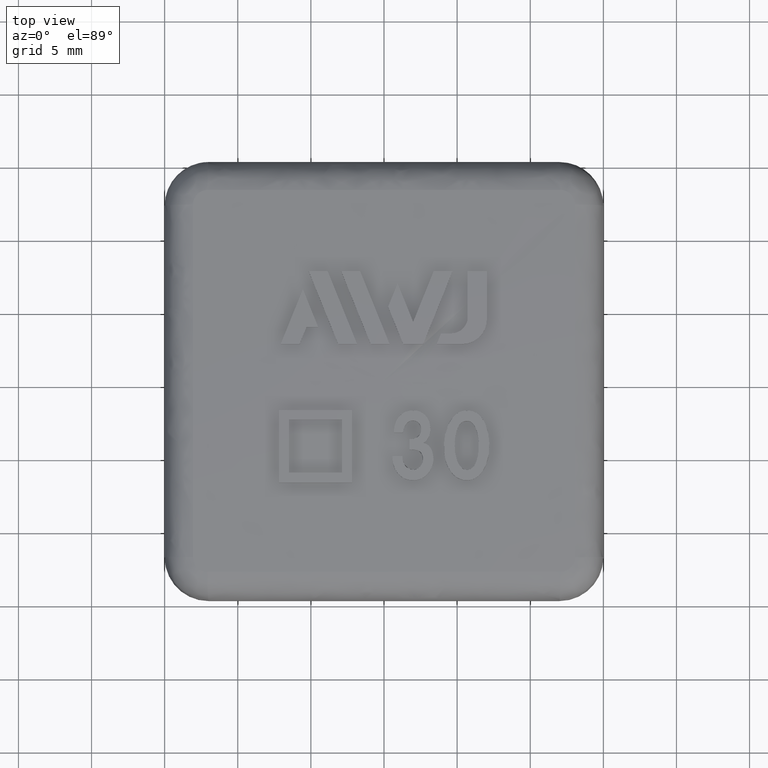
[diagram: clean part render]
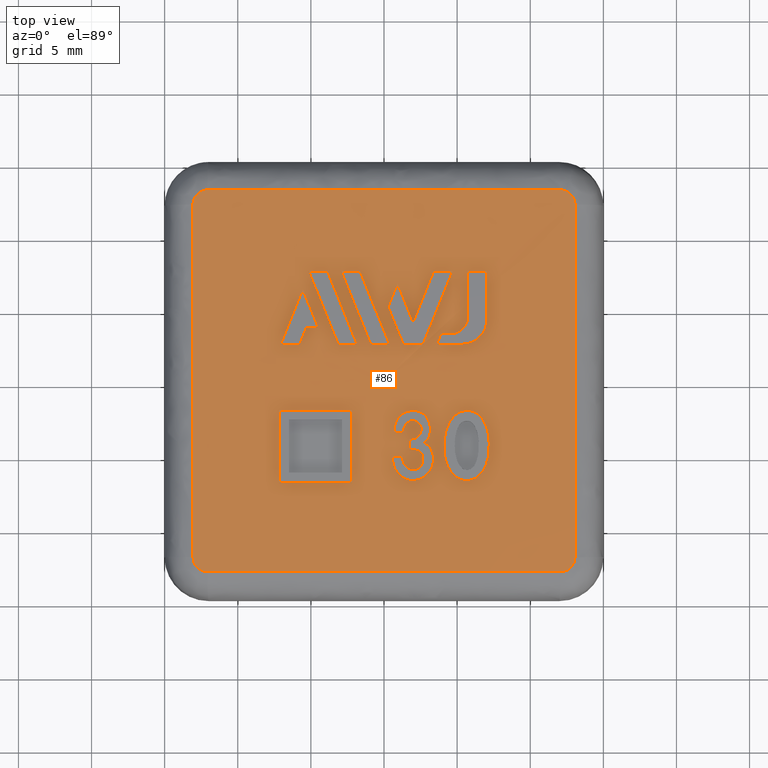
[diagram: same view with one face highlighted and labeled with its STEP entity id]
A machine part, top view. The second image highlights one B-rep face of the part: STEP entity #86.
In plain terms, the highlighted face is a freeform B-spline surface patch.
Its self-contained STEP definition (entity closure, byte-faithful):
#86 = ADVANCED_FACE( '', ( #368, #369, #370, #371, #372, #373, #374, #375, #376, #377 ), #378, .T. );
#368 = FACE_BOUND( '', #1010, .T. );
#369 = FACE_BOUND( '', #1011, .T. );
#370 = FACE_BOUND( '', #1012, .T. );
#371 = FACE_BOUND( '', #1013, .T. );
#372 = FACE_BOUND( '', #1014, .T. );
#373 = FACE_OUTER_BOUND( '', #1015, .T. );
#374 = FACE_BOUND( '', #1016, .T. );
#375 = FACE_BOUND( '', #1017, .T. );
#376 = FACE_BOUND( '', #1018, .T. );
#377 = FACE_BOUND( '', #1019, .T. );
#378 = ( B_SPLINE_SURFACE( 3, 3, ( ( #1021, #1022, #1023, #1024, #1025, #1026, #1027 ), ( #1028, #1029, #1030, #1031, #1032, #1033, #1034 ), ( #1035, #1036, #1037, #1038, #1039, #1040, #1041 ), ( #1042, #1043, #1044, #1045, #1046, #1047, #1048 ) ), .UNSPECIFIED., .F., .T., .F. )B_SPLINE_SURFACE_WITH_KNOTS( ( 4, 4 ), ( 4, 3, 4 ), ( 0.000000000000000, 6.28318530717959 ), ( -1.57230999332917, -1.54958785648394, -1.52686571963871 ), .UNSPECIFIED. )RATIONAL_B_SPLINE_SURFACE( ( ( 1.00000000000000, 0.333333333333333, 0.333333333333333, 1.00000000000000, 0.333333333333333, 0.333333333333333, 1.00000000000000 ), ( 0.999827908903408, 0.333275969634469, 0.333275969634469, 0.999827908903408, 0.333275969634469, 0.333275969634469, 0.999827908903408 ), ( 0.999827908903408, 0.333275969634469, 0.333275969634469, 0.999827908903408, 0.333275969634469, 0.333275969634469, 0.999827908903408 ), ( 1.00000000000000, 0.333333333333333, 0.333333333333333, 1.00000000000000, 0.333333333333333, 0.333333333333333, 1.00000000000000 ) ) )BOUNDED_SURFACE(  )REPRESENTATION_ITEM( '' )GEOMETRIC_REPRESENTATION_ITEM(  )SURFACE(  ) );
#1010 = EDGE_LOOP( '', ( #3270 ) );
#1011 = EDGE_LOOP( '', ( #3271, #3272, #3273, #3274, #3275, #3276, #3277, #3278 ) );
#1012 = EDGE_LOOP( '', ( #3279, #3280, #3281, #3282, #3283, #3284, #3285, #3286 ) );
#1013 = EDGE_LOOP( '', ( #3287, #3288, #3289, #3290 ) );
#1014 = EDGE_LOOP( '', ( #3291, #3292, #3293, #3294, #3295 ) );
#1015 = EDGE_LOOP( '', ( #3296, #3297, #3298, #3299, #3300, #3301, #3302, #3303 ) );
#1016 = VERTEX_LOOP( '', #3304 );
#1017 = EDGE_LOOP( '', ( #3305, #3306, #3307, #3308 ) );
#1018 = EDGE_LOOP( '', ( #3309, #3310, #3311, #3312, #3313, #3314, #3315 ) );
#1019 = EDGE_LOOP( '', ( #3316, #3317, #3318, #3319 ) );
#1021 = CARTESIAN_POINT( '', ( -18.1720576835749, 2.21319472875991E-016, 25.6145406592933 ) );
#1022 = CARTESIAN_POINT( '', ( -18.1720576835749, 36.3441153671498, 25.6145406592932 ) );
#1023 = CARTESIAN_POINT( '', ( 18.1720576835749, 36.3441153671498, 25.6145406592932 ) );
#1024 = CARTESIAN_POINT( '', ( 18.1720576835749, 2.21319472875988E-016, 25.6145406592932 ) );
#1025 = CARTESIAN_POINT( '', ( 18.1720576835749, -36.3441153671498, 25.6145406592933 ) );
#1026 = CARTESIAN_POINT( '', ( -18.1720576835749, -36.3441153671498, 25.6145406592933 ) );
#1027 = CARTESIAN_POINT( '', ( -18.1720576835749, 2.21319472875991E-016, 25.6145406592933 ) );
#1028 = CARTESIAN_POINT( '', ( -12.1181461581934, 2.37614282666941E-016, 25.8806638872202 ) );
#1029 = CARTESIAN_POINT( '', ( -12.1181461581934, 24.2362923163868, 25.8806638872202 ) );
#1030 = CARTESIAN_POINT( '', ( 12.1181461581934, 24.2362923163868, 25.8806638872202 ) );
#1031 = CARTESIAN_POINT( '', ( 12.1181461581934, 2.37614282666940E-016, 25.8806638872202 ) );
#1032 = CARTESIAN_POINT( '', ( 12.1181461581934, -24.2362923163868, 25.8806638872202 ) );
#1033 = CARTESIAN_POINT( '', ( -12.1181461581934, -24.2362923163868, 25.8806638872202 ) );
#1034 = CARTESIAN_POINT( '', ( -12.1181461581934, 2.37614282666942E-016, 25.8806638872202 ) );
#1035 = CARTESIAN_POINT( '', ( -6.05975100113562, 2.45482902749227E-016, 26.0091724493018 ) );
#1036 = CARTESIAN_POINT( '', ( -6.05975100113562, 12.1195020022712, 26.0091724493018 ) );
#1037 = CARTESIAN_POINT( '', ( 6.05975100113562, 12.1195020022712, 26.0091724493018 ) );
#1038 = CARTESIAN_POINT( '', ( 6.05975100113562, 2.45482902749229E-016, 26.0091724493018 ) );
#1039 = CARTESIAN_POINT( '', ( 6.05975100113562, -12.1195020022712, 26.0091724493018 ) );
#1040 = CARTESIAN_POINT( '', ( -6.05975100113562, -12.1195020022712, 26.0091724493018 ) );
#1041 = CARTESIAN_POINT( '', ( -6.05975100113562, 2.45482902749227E-016, 26.0091724493018 ) );
#1042 = CARTESIAN_POINT( '', ( -8.38088279331295E-014, 2.44921270764477E-016, 26.0000000000001 ) );
#1043 = CARTESIAN_POINT( '', ( -8.38088279331295E-014, 1.68274517846551E-013, 26.0000000000001 ) );
#1044 = CARTESIAN_POINT( '', ( 8.42207686426568E-014, 1.68274517846551E-013, 26.0000000000001 ) );
#1045 = CARTESIAN_POINT( '', ( 8.42207686426568E-014, 2.44921270764479E-016, 26.0000000000001 ) );
#1046 = CARTESIAN_POINT( '', ( 8.42207686426568E-014, -1.67784675305022E-013, 26.0000000000001 ) );
#1047 = CARTESIAN_POINT( '', ( -8.38088279331295E-014, -1.67784675305022E-013, 26.0000000000001 ) );
#1048 = CARTESIAN_POINT( '', ( -8.38088279331295E-014, 2.44921270764477E-016, 26.0000000000001 ) );
#3270 = ORIENTED_EDGE( '', *, *, #5410, .T. );
#3271 = ORIENTED_EDGE( '', *, *, #5387, .F. );
#3272 = ORIENTED_EDGE( '', *, *, #5384, .F. );
#3273 = ORIENTED_EDGE( '', *, *, #5411, .F. );
#3274 = ORIENTED_EDGE( '', *, *, #5412, .F. );
#3275 = ORIENTED_EDGE( '', *, *, #5413, .F. );
#3276 = ORIENTED_EDGE( '', *, *, #5414, .F. );
#3277 = ORIENTED_EDGE( '', *, *, #5415, .F. );
#3278 = ORIENTED_EDGE( '', *, *, #5416, .F. );
#3279 = ORIENTED_EDGE( '', *, *, #5417, .F. );
#3280 = ORIENTED_EDGE( '', *, *, #5418, .F. );
#3281 = ORIENTED_EDGE( '', *, *, #5419, .F. );
#3282 = ORIENTED_EDGE( '', *, *, #5420, .F. );
#3283 = ORIENTED_EDGE( '', *, *, #5421, .F. );
#3284 = ORIENTED_EDGE( '', *, *, #5422, .F. );
#3285 = ORIENTED_EDGE( '', *, *, #5423, .F. );
#3286 = ORIENTED_EDGE( '', *, *, #5424, .F. );
#3287 = ORIENTED_EDGE( '', *, *, #5425, .F. );
#3288 = ORIENTED_EDGE( '', *, *, #5426, .F. );
#3289 = ORIENTED_EDGE( '', *, *, #5427, .F. );
#3290 = ORIENTED_EDGE( '', *, *, #5428, .F. );
#3291 = ORIENTED_EDGE( '', *, *, #5380, .F. );
#3292 = ORIENTED_EDGE( '', *, *, #5429, .F. );
#3293 = ORIENTED_EDGE( '', *, *, #5430, .F. );
#3294 = ORIENTED_EDGE( '', *, *, #5408, .F. );
#3295 = ORIENTED_EDGE( '', *, *, #5406, .F. );
#3296 = ORIENTED_EDGE( '', *, *, #5431, .T. );
#3297 = ORIENTED_EDGE( '', *, *, #5432, .T. );
#3298 = ORIENTED_EDGE( '', *, *, #5433, .T. );
#3299 = ORIENTED_EDGE( '', *, *, #5434, .T. );
#3300 = ORIENTED_EDGE( '', *, *, #5435, .T. );
#3301 = ORIENTED_EDGE( '', *, *, #5436, .T. );
#3302 = ORIENTED_EDGE( '', *, *, #5437, .T. );
#3303 = ORIENTED_EDGE( '', *, *, #5438, .T. );
#3304 = VERTEX_POINT( '', #5439 );
#3305 = ORIENTED_EDGE( '', *, *, #5440, .F. );
#3306 = ORIENTED_EDGE( '', *, *, #5441, .F. );
#3307 = ORIENTED_EDGE( '', *, *, #5442, .F. );
#3308 = ORIENTED_EDGE( '', *, *, #5443, .F. );
#3309 = ORIENTED_EDGE( '', *, *, #5444, .F. );
#3310 = ORIENTED_EDGE( '', *, *, #5445, .F. );
#3311 = ORIENTED_EDGE( '', *, *, #5446, .F. );
#3312 = ORIENTED_EDGE( '', *, *, #5447, .F. );
#3313 = ORIENTED_EDGE( '', *, *, #5448, .F. );
#3314 = ORIENTED_EDGE( '', *, *, #5449, .F. );
#3315 = ORIENTED_EDGE( '', *, *, #5450, .F. );
#3316 = ORIENTED_EDGE( '', *, *, #5451, .F. );
#3317 = ORIENTED_EDGE( '', *, *, #5452, .F. );
#3318 = ORIENTED_EDGE( '', *, *, #5453, .F. );
#3319 = ORIENTED_EDGE( '', *, *, #5454, .F. );
#5380 = EDGE_CURVE( '', #6087, #6089, #6090, .T. );
#5384 = EDGE_CURVE( '', #6095, #6097, #6098, .T. );
#5387 = EDGE_CURVE( '', #6097, #6102, #6103, .T. );
#5406 = EDGE_CURVE( '', #6089, #6137, #6138, .T. );
#5408 = EDGE_CURVE( '', #6137, #6140, #6141, .T. );
#5410 = EDGE_CURVE( '', #6143, #6143, #6144, .T. );
#5411 = EDGE_CURVE( '', #6145, #6095, #6146, .T. );
#5412 = EDGE_CURVE( '', #6147, #6145, #6148, .T. );
#5413 = EDGE_CURVE( '', #6149, #6147, #6150, .T. );
#5414 = EDGE_CURVE( '', #6151, #6149, #6152, .T. );
#5415 = EDGE_CURVE( '', #6153, #6151, #6154, .T. );
#5416 = EDGE_CURVE( '', #6102, #6153, #6155, .T. );
#5417 = EDGE_CURVE( '', #6156, #6157, #6158, .T. );
#5418 = EDGE_CURVE( '', #6159, #6156, #6160, .T. );
#5419 = EDGE_CURVE( '', #6161, #6159, #6162, .T. );
#5420 = EDGE_CURVE( '', #6163, #6161, #6164, .T. );
#5421 = EDGE_CURVE( '', #6165, #6163, #6166, .T. );
#5422 = EDGE_CURVE( '', #6167, #6165, #6168, .T. );
#5423 = EDGE_CURVE( '', #6169, #6167, #6170, .T. );
#5424 = EDGE_CURVE( '', #6157, #6169, #6171, .T. );
#5425 = EDGE_CURVE( '', #6172, #6173, #6174, .T. );
#5426 = EDGE_CURVE( '', #6175, #6172, #6176, .T. );
#5427 = EDGE_CURVE( '', #6177, #6175, #6178, .T. );
#5428 = EDGE_CURVE( '', #6173, #6177, #6179, .T. );
#5429 = EDGE_CURVE( '', #6180, #6087, #6181, .T. );
#5430 = EDGE_CURVE( '', #6140, #6180, #6182, .T. );
#5431 = EDGE_CURVE( '', #6183, #6184, #6185, .T. );
#5432 = EDGE_CURVE( '', #6184, #6186, #6187, .T. );
#5433 = EDGE_CURVE( '', #6186, #6188, #6189, .T. );
#5434 = EDGE_CURVE( '', #6188, #6190, #6191, .T. );
#5435 = EDGE_CURVE( '', #6190, #6192, #6193, .T. );
#5436 = EDGE_CURVE( '', #6192, #6194, #6195, .T. );
#5437 = EDGE_CURVE( '', #6194, #6196, #6197, .T. );
#5438 = EDGE_CURVE( '', #6196, #6183, #6198, .T. );
#5439 = CARTESIAN_POINT( '', ( 2.44921270764484E-016, 2.44921270764484E-016, 26.0000000000001 ) );
#5440 = EDGE_CURVE( '', #6199, #6200, #6201, .T. );
#5441 = EDGE_CURVE( '', #6202, #6199, #6203, .T. );
#5442 = EDGE_CURVE( '', #6204, #6202, #6205, .T. );
#5443 = EDGE_CURVE( '', #6200, #6204, #6206, .T. );
#5444 = EDGE_CURVE( '', #6207, #6208, #6209, .T. );
#5445 = EDGE_CURVE( '', #6210, #6207, #6211, .T. );
#5446 = EDGE_CURVE( '', #6212, #6210, #6213, .T. );
#5447 = EDGE_CURVE( '', #6214, #6212, #6215, .T. );
#5448 = EDGE_CURVE( '', #6216, #6214, #6217, .T. );
#5449 = EDGE_CURVE( '', #6218, #6216, #6219, .T. );
#5450 = EDGE_CURVE( '', #6208, #6218, #6220, .T. );
#5451 = EDGE_CURVE( '', #6221, #6222, #6223, .T. );
#5452 = EDGE_CURVE( '', #6224, #6221, #6225, .T. );
#5453 = EDGE_CURVE( '', #6226, #6224, #6227, .T. );
#5454 = EDGE_CURVE( '', #6222, #6226, #6228, .T. );
#6087 = VERTEX_POINT( '', #7246 );
#6089 = VERTEX_POINT( '', #7249 );
#6090 = B_SPLINE_CURVE_WITH_KNOTS( '', 3, ( #7250, #7251, #7252, #7253 ), .UNSPECIFIED., .F., .F., ( 4, 4 ), ( 2.15705609540691E-007, 0.00279887301646040 ), .UNSPECIFIED. );
#6095 = VERTEX_POINT( '', #7288 );
#6097 = VERTEX_POINT( '', #7291 );
#6098 = B_SPLINE_CURVE_WITH_KNOTS( '', 3, ( #7292, #7293, #7294, #7295, #7296, #7297, #7298, #7299, #7300, #7301, #7302, #7303, #7304, #7305, #7306, #7307, #7308, #7309, #7310, #7311, #7312, #7313, #7314, #7315, #7316, #7317, #7318, #7319, #7320, #7321 ), .UNSPECIFIED., .F., .F., ( 4, 2, 2, 2, 2, 2, 2, 2, 2, 2, 2, 2, 2, 2, 4 ), ( 0.000000000000000, 0.000459346962101982, 0.000689020443152973, 0.000918693924203964, 0.00114836740525496, 0.00137804088630595, 0.00160771436735694, 0.00183738784840793, 0.00206706132945892, 0.00229673481050991, 0.00252640829156090, 0.00275608177261189, 0.00298575525366288, 0.00321542873471388, 0.00367477569681585 ), .UNSPECIFIED. );
#6102 = VERTEX_POINT( '', #7331 );
#6103 = B_SPLINE_CURVE_WITH_KNOTS( '', 3, ( #7332, #7333, #7334, #7335, #7336, #7337 ), .UNSPECIFIED., .F., .F., ( 4, 2, 4 ), ( 2.53749844124388, 2.53783933342230, 2.53818022560073 ), .UNSPECIFIED. );
#6137 = VERTEX_POINT( '', #7637 );
#6138 = B_SPLINE_CURVE_WITH_KNOTS( '', 3, ( #7638, #7639, #7640, #7641 ), .UNSPECIFIED., .F., .F., ( 4, 4 ), ( 2.15708657217391E-007, 0.00404454127771191 ), .UNSPECIFIED. );
#6140 = VERTEX_POINT( '', #7644 );
#6141 = B_SPLINE_CURVE_WITH_KNOTS( '', 3, ( #7645, #7646, #7647, #7648, #7649, #7650 ), .UNSPECIFIED., .F., .F., ( 4, 2, 4 ), ( 2.53736596383205, 2.53801196573442, 2.53865796763679 ), .UNSPECIFIED. );
#6143 = VERTEX_POINT( '', #7653 );
#6144 = B_SPLINE_CURVE_WITH_KNOTS( '', 3, ( #7654, #7655, #7656, #7657, #7658, #7659, #7660, #7661, #7662, #7663, #7664, #7665, #7666, #7667, #7668, #7669, #7670, #7671, #7672, #7673, #7674, #7675, #7676, #7677, #7678, #7679, #7680, #7681, #7682, #7683, #7684, #7685, #7686, #7687, #7688, #7689, #7690, #7691, #7692, #7693, #7694, #7695, #7696, #7697, #7698, #7699, #7700, #7701, #7702, #7703, #7704, #7705, #7706, #7707 ), .UNSPECIFIED., .T., .F., ( 2, 2, 2, 2, 2, 2, 2, 2, 2, 2, 2, 2, 2, 2, 2, 2, 2, 2, 2, 2, 2, 2, 2, 2, 2, 2, 2, 2, 2 ), ( -0.000788962407653478, 0.000000000000000, 0.000394481203826738, 0.000788962407653475, 0.00157792481530695, 0.00236688722296043, 0.00276136842678717, 0.00315584963061390, 0.00355033083444064, 0.00394481203826738, 0.00433929324209412, 0.00473377444592085, 0.00512825564974759, 0.00552273685357433, 0.00591721805740107, 0.00631169926122780, 0.00670618046505454, 0.00710066166888128, 0.00788962407653476, 0.00867858648418824, 0.00946754889184172, 0.00986203009566845, 0.0102565112994952, 0.0106509925033219, 0.0110454737071487, 0.0114399549109754, 0.0118344361148022, 0.0126233985224556, 0.0130178797262824 ), .UNSPECIFIED. );
#6145 = VERTEX_POINT( '', #7708 );
#6146 = B_SPLINE_CURVE_WITH_KNOTS( '', 3, ( #7709, #7710, #7711, #7712, #7713, #7714 ), .UNSPECIFIED., .F., .F., ( 4, 2, 4 ), ( 2.53767158189239, 2.53802385655338, 2.53837613121438 ), .UNSPECIFIED. );
#6147 = VERTEX_POINT( '', #7715 );
#6148 = B_SPLINE_CURVE_WITH_KNOTS( '', 3, ( #7716, #7717, #7718, #7719, #7720, #7721, #7722, #7723, #7724, #7725, #7726, #7727, #7728, #7729, #7730, #7731, #7732, #7733, #7734, #7735, #7736, #7737, #7738, #7739, #7740, #7741 ), .UNSPECIFIED., .F., .F., ( 4, 2, 2, 2, 2, 2, 2, 2, 2, 2, 2, 2, 4 ), ( 0.000000000000000, 0.000406149407314808, 0.000609224110972213, 0.000812298814629617, 0.00101537351828702, 0.00121844822194442, 0.00142152292560183, 0.00162459762925923, 0.00203074703657404, 0.00243689644388885, 0.00263997114754625, 0.00284304585120365, 0.00324919525851846 ), .UNSPECIFIED. );
#6149 = VERTEX_POINT( '', #7742 );
#6150 = B_SPLINE_CURVE_WITH_KNOTS( '', 3, ( #7743, #7744, #7745, #7746, #7747, #7748 ), .UNSPECIFIED., .F., .F., ( 4, 2, 4 ), ( 2.53743832878502, 2.53774516068810, 2.53805199259119 ), .UNSPECIFIED. );
#6151 = VERTEX_POINT( '', #7749 );
#6152 = B_SPLINE_CURVE_WITH_KNOTS( '', 3, ( #7750, #7751, #7752, #7753, #7754, #7755, #7756, #7757, #7758, #7759, #7760, #7761, #7762, #7763, #7764, #7765, #7766, #7767, #7768, #7769, #7770, #7771, #7772, #7773, #7774, #7775, #7776, #7777, #7778, #7779 ), .UNSPECIFIED., .F., .F., ( 4, 2, 2, 2, 2, 2, 2, 2, 2, 2, 2, 2, 2, 2, 4 ), ( 0.000000000000000, 0.000330794563807067, 0.000661589127614135, 0.000992383691421202, 0.00132317825522827, 0.00198476738284240, 0.00231556194664947, 0.00264635651045654, 0.00297715107426361, 0.00330794563807068, 0.00363874020187774, 0.00396953476568481, 0.00463112389329895, 0.00496191845710602, 0.00529271302091308 ), .UNSPECIFIED. );
#6153 = VERTEX_POINT( '', #7780 );
#6154 = B_SPLINE_CURVE_WITH_KNOTS( '', 3, ( #7781, #7782, #7783, #7784, #7785, #7786, #7787, #7788, #7789, #7790, #7791, #7792, #7793, #7794, #7795, #7796, #7797, #7798, #7799, #7800, #7801, #7802, #7803, #7804, #7805, #7806, #7807, #7808 ), .UNSPECIFIED., .F., .F., ( 4, 2, 2, 2, 2, 2, 2, 2, 2, 2, 2, 2, 2, 4 ), ( 0.000000000000000, 0.000290730908306047, 0.000581461816612093, 0.000872192724918140, 0.00116292363322419, 0.00174438544983628, 0.00232584726644837, 0.00290730908306047, 0.00319803999136651, 0.00348877089967256, 0.00377950180797861, 0.00407023271628465, 0.00436096362459070, 0.00465169453289675 ), .UNSPECIFIED. );
#6155 = B_SPLINE_CURVE_WITH_KNOTS( '', 3, ( #7809, #7810, #7811, #7812, #7813, #7814 ), .UNSPECIFIED., .F., .F., ( 4, 2, 4 ), ( 0.000000000000000, 0.000700603845228094, 0.00140120769045619 ), .UNSPECIFIED. );
#6156 = VERTEX_POINT( '', #7815 );
#6157 = VERTEX_POINT( '', #7816 );
#6158 = B_SPLINE_CURVE_WITH_KNOTS( '', 3, ( #7817, #7818, #7819, #7820, #7821, #7822 ), .UNSPECIFIED., .F., .F., ( 4, 2, 4 ), ( 2.53643469338496, 2.53810133389642, 2.53976797440787 ), .UNSPECIFIED. );
#6159 = VERTEX_POINT( '', #7823 );
#6160 = B_SPLINE_CURVE_WITH_KNOTS( '', 3, ( #7824, #7825, #7826, #7827, #7828, #7829, #7830, #7831, #7832, #7833, #7834, #7835, #7836, #7837 ), .UNSPECIFIED., .F., .F., ( 4, 2, 2, 2, 2, 2, 4 ), ( 1.97177344510224E-007, 0.000326004704455945, 0.000651812231567380, 0.000977619758678815, 0.00130342728579025, 0.00195504234001312, 0.00260665739423599 ), .UNSPECIFIED. );
#6161 = VERTEX_POINT( '', #7838 );
#6162 = B_SPLINE_CURVE_WITH_KNOTS( '', 3, ( #7839, #7840, #7841, #7842, #7843, #7844 ), .UNSPECIFIED., .F., .F., ( 4, 2, 4 ), ( 2.53700304603647, 2.53788064630939, 2.53875824658230 ), .UNSPECIFIED. );
#6163 = VERTEX_POINT( '', #7845 );
#6164 = B_SPLINE_CURVE_WITH_KNOTS( '', 3, ( #7846, #7847, #7848, #7849 ), .UNSPECIFIED., .F., .F., ( 4, 4 ), ( 2.15717159841525E-007, 0.000784653273892449 ), .UNSPECIFIED. );
#6165 = VERTEX_POINT( '', #7850 );
#6166 = B_SPLINE_CURVE_WITH_KNOTS( '', 3, ( #7851, #7852, #7853, #7854, #7855, #7856 ), .UNSPECIFIED., .F., .F., ( 4, 2, 4 ), ( 2.53761382451240, 2.53796901538230, 2.53832420625221 ), .UNSPECIFIED. );
#6167 = VERTEX_POINT( '', #7857 );
#6168 = B_SPLINE_CURVE_WITH_KNOTS( '', 3, ( #7858, #7859, #7860, #7861, #7862, #7863, #7864, #7865, #7866, #7867 ), .UNSPECIFIED., .F., .F., ( 4, 2, 2, 2, 4 ), ( 1.97173800806945E-007, 0.000434601852680955, 0.000869006531561102, 0.00130341121044125, 0.00173781588932140 ), .UNSPECIFIED. );
#6169 = VERTEX_POINT( '', #7868 );
#6170 = B_SPLINE_CURVE_WITH_KNOTS( '', 3, ( #7869, #7870, #7871, #7872, #7873, #7874 ), .UNSPECIFIED., .F., .F., ( 4, 2, 4 ), ( 2.53757223134171, 2.53915327555952, 2.54073431977734 ), .UNSPECIFIED. );
#6171 = B_SPLINE_CURVE_WITH_KNOTS( '', 3, ( #7875, #7876, #7877, #7878, #7879, #7880 ), .UNSPECIFIED., .F., .F., ( 4, 2, 4 ), ( 2.53776171686319, 2.53841528389529, 2.53906885092740 ), .UNSPECIFIED. );
#6172 = VERTEX_POINT( '', #7881 );
#6173 = VERTEX_POINT( '', #7882 );
#6174 = B_SPLINE_CURVE_WITH_KNOTS( '', 3, ( #7883, #7884, #7885, #7886 ), .UNSPECIFIED., .F., .F., ( 4, 4 ), ( 2.15742670522386E-007, 0.00539479572101458 ), .UNSPECIFIED. );
#6175 = VERTEX_POINT( '', #7887 );
#6176 = B_SPLINE_CURVE_WITH_KNOTS( '', 3, ( #7888, #7889, #7890, #7891, #7892, #7893 ), .UNSPECIFIED., .F., .F., ( 4, 2, 4 ), ( 2.53708903227744, 2.53773511986751, 2.53838120745757 ), .UNSPECIFIED. );
#6177 = VERTEX_POINT( '', #7894 );
#6178 = B_SPLINE_CURVE_WITH_KNOTS( '', 3, ( #7895, #7896, #7897, #7898 ), .UNSPECIFIED., .F., .F., ( 4, 4 ), ( 2.15711025725695E-007, 0.00539476052434132 ), .UNSPECIFIED. );
#6179 = B_SPLINE_CURVE_WITH_KNOTS( '', 3, ( #7899, #7900, #7901, #7902, #7903, #7904 ), .UNSPECIFIED., .F., .F., ( 4, 2, 4 ), ( 2.53791172121585, 2.53855794664156, 2.53920417206727 ), .UNSPECIFIED. );
#6180 = VERTEX_POINT( '', #7905 );
#6181 = B_SPLINE_CURVE_WITH_KNOTS( '', 3, ( #7906, #7907, #7908, #7909, #7910, #7911 ), .UNSPECIFIED., .F., .F., ( 4, 2, 4 ), ( 2.53755013597406, 2.53795195951215, 2.53835378305025 ), .UNSPECIFIED. );
#6182 = B_SPLINE_CURVE_WITH_KNOTS( '', 3, ( #7912, #7913, #7914, #7915 ), .UNSPECIFIED., .F., .F., ( 4, 4 ), ( 2.15728776925664E-007, 0.00124618052641531 ), .UNSPECIFIED. );
#6183 = VERTEX_POINT( '', #7916 );
#6184 = VERTEX_POINT( '', #7917 );
#6185 = B_SPLINE_CURVE_WITH_KNOTS( '', 3, ( #7918, #7919, #7920, #7921, #7922, #7923, #7924, #7925, #7926, #7927, #7928, #7929, #7930, #7931, #7932, #7933, #7934, #7935, #7936, #7937, #7938, #7939, #7940, #7941, #7942, #7943, #7944, #7945, #7946, #7947, #7948, #7949, #7950, #7951, #7952, #7953, #7954, #7955 ), .UNSPECIFIED., .F., .F., ( 4, 1, 1, 2, 2, 2, 1, 1, 2, 1, 2, 2, 1, 1, 2, 2, 2, 1, 1, 2, 2, 2, 1, 4 ), ( 0.000000000000000, 9.81271565462462E-005, 0.000196254313092492, 0.000294381469638738, 0.000318913258775300, 0.000343445047911862, 0.000392508626184986, 0.000490635782731233, 0.000588762939277480, 0.000637826517550604, 0.000662358306687166, 0.000686890095823728, 0.000785017252369971, 0.000883144408916215, 0.000981271565462458, 0.00100580335459902, 0.00103033514373558, 0.00107939872200870, 0.00117752587855495, 0.00127565303510120, 0.00132471661337433, 0.00137378019164745, 0.00147190734819370, 0.00157003450473995 ), .UNSPECIFIED. );
#6186 = VERTEX_POINT( '', #7956 );
#6187 = B_SPLINE_CURVE_WITH_KNOTS( '', 3, ( #7957, #7958, #7959, #7960, #7961, #7962, #7963, #7964, #7965, #7966, #7967, #7968, #7969, #7970 ), .UNSPECIFIED., .F., .F., ( 4, 2, 2, 2, 2, 2, 4 ), ( 0.000000000000000, 0.00602929683142525, 0.0120585936628505, 0.0150732420785631, 0.0165805662864194, 0.0180878904942758, 0.0241171873257010 ), .UNSPECIFIED. );
#6188 = VERTEX_POINT( '', #7971 );
#6189 = B_SPLINE_CURVE_WITH_KNOTS( '', 3, ( #7972, #7973, #7974, #7975, #7976, #7977, #7978, #7979, #7980, #7981, #7982, #7983, #7984, #7985, #7986, #7987, #7988, #7989, #7990, #7991, #7992, #7993, #7994, #7995, #7996, #7997, #7998, #7999, #8000, #8001, #8002, #8003, #8004, #8005, #8006, #8007, #8008, #8009 ), .UNSPECIFIED., .F., .F., ( 4, 1, 1, 2, 2, 2, 1, 1, 2, 1, 2, 2, 1, 1, 2, 2, 2, 1, 1, 2, 2, 2, 1, 4 ), ( 0.000000000000000, 9.81271565462443E-005, 0.000196254313092489, 0.000294381469638733, 0.000318913258775294, 0.000343445047911856, 0.000392508626184978, 0.000490635782731224, 0.000588762939277469, 0.000637826517550591, 0.000662358306687151, 0.000686890095823712, 0.000785017252369951, 0.000883144408916190, 0.000981271565462428, 0.00100580335459899, 0.00103033514373555, 0.00107939872200868, 0.00117752587855493, 0.00127565303510118, 0.00132471661337431, 0.00137378019164744, 0.00147190734819369, 0.00157003450473995 ), .UNSPECIFIED. );
#6190 = VERTEX_POINT( '', #8010 );
#6191 = B_SPLINE_CURVE_WITH_KNOTS( '', 3, ( #8011, #8012, #8013, #8014, #8015, #8016, #8017, #8018, #8019, #8020, #8021, #8022, #8023, #8024 ), .UNSPECIFIED., .F., .F., ( 4, 2, 2, 2, 2, 2, 4 ), ( 0.000000000000000, 0.00602929683142525, 0.0120585936628505, 0.0150732420785631, 0.0165805662864194, 0.0180878904942758, 0.0241171873257010 ), .UNSPECIFIED. );
#6192 = VERTEX_POINT( '', #8025 );
#6193 = B_SPLINE_CURVE_WITH_KNOTS( '', 3, ( #8026, #8027, #8028, #8029, #8030, #8031, #8032, #8033, #8034, #8035, #8036, #8037, #8038, #8039, #8040, #8041, #8042, #8043, #8044, #8045, #8046, #8047, #8048, #8049, #8050, #8051, #8052, #8053, #8054, #8055, #8056, #8057, #8058, #8059, #8060, #8061, #8062, #8063 ), .UNSPECIFIED., .F., .F., ( 4, 1, 1, 2, 2, 2, 1, 1, 2, 1, 2, 2, 1, 1, 2, 2, 2, 1, 1, 2, 2, 2, 1, 4 ), ( 0.000000000000000, 9.81271565462441E-005, 0.000196254313092488, 0.000294381469638732, 0.000318913258775294, 0.000343445047911855, 0.000392508626184978, 0.000490635782731223, 0.000588762939277468, 0.000637826517550589, 0.000662358306687150, 0.000686890095823711, 0.000785017252369949, 0.000883144408916188, 0.000981271565462427, 0.00100580335459899, 0.00103033514373555, 0.00107939872200867, 0.00117752587855493, 0.00127565303510118, 0.00132471661337431, 0.00137378019164744, 0.00147190734819369, 0.00157003450473995 ), .UNSPECIFIED. );
#6194 = VERTEX_POINT( '', #8064 );
#6195 = B_SPLINE_CURVE_WITH_KNOTS( '', 3, ( #8065, #8066, #8067, #8068, #8069, #8070, #8071, #8072, #8073, #8074, #8075, #8076, #8077, #8078 ), .UNSPECIFIED., .F., .F., ( 4, 2, 2, 2, 2, 2, 4 ), ( 0.000000000000000, 0.00602929683142525, 0.0120585936628505, 0.0150732420785631, 0.0165805662864194, 0.0180878904942758, 0.0241171873257010 ), .UNSPECIFIED. );
#6196 = VERTEX_POINT( '', #8079 );
#6197 = B_SPLINE_CURVE_WITH_KNOTS( '', 3, ( #8080, #8081, #8082, #8083, #8084, #8085, #8086, #8087, #8088, #8089, #8090, #8091, #8092, #8093, #8094, #8095, #8096, #8097, #8098, #8099, #8100, #8101, #8102, #8103, #8104, #8105, #8106, #8107, #8108, #8109, #8110, #8111, #8112, #8113, #8114, #8115, #8116, #8117 ), .UNSPECIFIED., .F., .F., ( 4, 1, 1, 2, 2, 2, 1, 1, 2, 1, 2, 2, 1, 1, 2, 2, 2, 1, 1, 2, 2, 2, 1, 4 ), ( 0.000000000000000, 9.81271565462462E-005, 0.000196254313092492, 0.000294381469638739, 0.000318913258775300, 0.000343445047911862, 0.000392508626184986, 0.000490635782731233, 0.000588762939277481, 0.000637826517550604, 0.000662358306687166, 0.000686890095823728, 0.000785017252369972, 0.000883144408916215, 0.000981271565462458, 0.00100580335459902, 0.00103033514373558, 0.00107939872200870, 0.00117752587855495, 0.00127565303510120, 0.00132471661337433, 0.00137378019164745, 0.00147190734819370, 0.00157003450473995 ), .UNSPECIFIED. );
#6198 = B_SPLINE_CURVE_WITH_KNOTS( '', 3, ( #8118, #8119, #8120, #8121, #8122, #8123, #8124, #8125, #8126, #8127, #8128, #8129, #8130, #8131 ), .UNSPECIFIED., .F., .F., ( 4, 2, 2, 2, 2, 2, 4 ), ( 0.000000000000000, 0.00602929683142525, 0.0120585936628505, 0.0150732420785631, 0.0165805662864194, 0.0180878904942758, 0.0241171873257010 ), .UNSPECIFIED. );
#6199 = VERTEX_POINT( '', #8132 );
#6200 = VERTEX_POINT( '', #8133 );
#6201 = B_SPLINE_CURVE_WITH_KNOTS( '', 3, ( #8134, #8135, #8136, #8137 ), .UNSPECIFIED., .F., .F., ( 4, 4 ), ( 2.15747481192440E-007, 0.00539484088075386 ), .UNSPECIFIED. );
#6202 = VERTEX_POINT( '', #8138 );
#6203 = B_SPLINE_CURVE_WITH_KNOTS( '', 3, ( #8139, #8140, #8141, #8142, #8143, #8144 ), .UNSPECIFIED., .F., .F., ( 4, 2, 4 ), ( 2.53756710619787, 2.53821313071023, 2.53885915522260 ), .UNSPECIFIED. );
#6204 = VERTEX_POINT( '', #8145 );
#6205 = B_SPLINE_CURVE_WITH_KNOTS( '', 3, ( #8146, #8147, #8148, #8149 ), .UNSPECIFIED., .F., .F., ( 4, 4 ), ( 2.15712534195724E-007, 0.00539487700156098 ), .UNSPECIFIED. );
#6206 = B_SPLINE_CURVE_WITH_KNOTS( '', 3, ( #8150, #8151, #8152, #8153, #8154, #8155 ), .UNSPECIFIED., .F., .F., ( 4, 2, 4 ), ( 2.53749287181316, 2.53813903925396, 2.53878520669476 ), .UNSPECIFIED. );
#6207 = VERTEX_POINT( '', #8156 );
#6208 = VERTEX_POINT( '', #8157 );
#6209 = B_SPLINE_CURVE_WITH_KNOTS( '', 3, ( #8158, #8159, #8160, #8161, #8162, #8163 ), .UNSPECIFIED., .F., .F., ( 4, 2, 4 ), ( 2.53771426766890, 2.53839736718436, 2.53908046669982 ), .UNSPECIFIED. );
#6210 = VERTEX_POINT( '', #8164 );
#6211 = B_SPLINE_CURVE_WITH_KNOTS( '', 3, ( #8165, #8166, #8167, #8168 ), .UNSPECIFIED., .F., .F., ( 4, 4 ), ( 2.15721986856780E-007, 0.00274849807975035 ), .UNSPECIFIED. );
#6212 = VERTEX_POINT( '', #8169 );
#6213 = B_SPLINE_CURVE_WITH_KNOTS( '', 3, ( #8170, #8171, #8172, #8173 ), .UNSPECIFIED., .F., .F., ( 4, 4 ), ( 2.15724795717302E-007, 0.00172561929446152 ), .UNSPECIFIED. );
#6214 = VERTEX_POINT( '', #8174 );
#6215 = B_SPLINE_CURVE_WITH_KNOTS( '', 3, ( #8175, #8176, #8177, #8178 ), .UNSPECIFIED., .F., .F., ( 4, 4 ), ( 2.15711559460472E-007, 0.00284697685336488 ), .UNSPECIFIED. );
#6216 = VERTEX_POINT( '', #8179 );
#6217 = B_SPLINE_CURVE_WITH_KNOTS( '', 3, ( #8180, #8181, #8182, #8183 ), .UNSPECIFIED., .F., .F., ( 4, 4 ), ( 2.15747297936727E-007, 0.00376793108594811 ), .UNSPECIFIED. );
#6218 = VERTEX_POINT( '', #8184 );
#6219 = B_SPLINE_CURVE_WITH_KNOTS( '', 3, ( #8185, #8186, #8187, #8188, #8189, #8190 ), .UNSPECIFIED., .F., .F., ( 4, 2, 4 ), ( 2.53807444340671, 2.53872065245126, 2.53936686149580 ), .UNSPECIFIED. );
#6220 = B_SPLINE_CURVE_WITH_KNOTS( '', 3, ( #8191, #8192, #8193, #8194 ), .UNSPECIFIED., .F., .F., ( 4, 4 ), ( 2.15708413636376E-007, 0.00539480681110092 ), .UNSPECIFIED. );
#6221 = VERTEX_POINT( '', #8195 );
#6222 = VERTEX_POINT( '', #8196 );
#6223 = B_SPLINE_CURVE_WITH_KNOTS( '', 3, ( #8197, #8198, #8199, #8200, #8201, #8202 ), .UNSPECIFIED., .F., .F., ( 4, 2, 4 ), ( 2.53541583940839, 2.53790453424404, 2.54039322907969 ), .UNSPECIFIED. );
#6224 = VERTEX_POINT( '', #8203 );
#6225 = B_SPLINE_CURVE_WITH_KNOTS( '', 3, ( #8204, #8205, #8206, #8207, #8208, #8209 ), .UNSPECIFIED., .F., .F., ( 4, 2, 4 ), ( 2.53555103296719, 2.53802842412991, 2.54050581529264 ), .UNSPECIFIED. );
#6226 = VERTEX_POINT( '', #8210 );
#6227 = B_SPLINE_CURVE_WITH_KNOTS( '', 3, ( #8211, #8212, #8213, #8214, #8215, #8216 ), .UNSPECIFIED., .F., .F., ( 4, 2, 4 ), ( 2.53636330515199, 2.53885214992440, 2.54134099469681 ), .UNSPECIFIED. );
#6228 = B_SPLINE_CURVE_WITH_KNOTS( '', 3, ( #8217, #8218, #8219, #8220, #8221, #8222 ), .UNSPECIFIED., .F., .F., ( 4, 2, 4 ), ( 2.53584972186249, 2.53832712886017, 2.54080453585784 ), .UNSPECIFIED. );
#7246 = CARTESIAN_POINT( '', ( -4.50344556986128, 3.65311807237999, 25.9667431861616 ) );
#7249 = CARTESIAN_POINT( '', ( -5.55130987101004, 6.24787199264249, 25.9253276910009 ) );
#7250 = CARTESIAN_POINT( '', ( -4.50344556986128, 3.65311807237999, 25.9667431861614 ) );
#7251 = CARTESIAN_POINT( '', ( -4.85274938088010, 4.51807494896228, 25.9561455610309 ) );
#7252 = CARTESIAN_POINT( '', ( -5.20204172795509, 5.38300343817307, 25.9423573162051 ) );
#7253 = CARTESIAN_POINT( '', ( -5.55130987101004, 6.24787199264249, 25.9253276910010 ) );
#7288 = CARTESIAN_POINT( '', ( 1.72333380681815, -4.70404545454547, 25.9762099990547 ) );
#7291 = CARTESIAN_POINT( '', ( 1.24606107954542, -5.15859090909092, 25.9728273364365 ) );
#7292 = CARTESIAN_POINT( '', ( 1.72333380681815, -4.70404545454547, 25.9762099990547 ) );
#7293 = CARTESIAN_POINT( '', ( 1.87765075264767, -4.70404545454547, 25.9756254661309 ) );
#7294 = CARTESIAN_POINT( '', ( 2.03133235586139, -4.70909979758262, 25.9749117810875 ) );
#7295 = CARTESIAN_POINT( '', ( 2.25743096158692, -4.75189388907646, 25.9733734256714 ) );
#7296 = CARTESIAN_POINT( '', ( 2.33426302512831, -4.77395789765576, 25.9727508159118 ) );
#7297 = CARTESIAN_POINT( '', ( 2.46930397008277, -4.85227928984945, 25.9711947788491 ) );
#7298 = CARTESIAN_POINT( '', ( 2.52858560838357, -4.90761796512331, 25.9702648965374 ) );
#7299 = CARTESIAN_POINT( '', ( 2.61247000893121, -5.03877669885994, 25.9683296485213 ) );
#7300 = CARTESIAN_POINT( '', ( 2.63849486577847, -5.11498081001189, 25.9673121177063 ) );
#7301 = CARTESIAN_POINT( '', ( 2.66557958007676, -5.26911791336585, 25.9653580835074 ) );
#7302 = CARTESIAN_POINT( '', ( 2.66757580532727, -5.34837808298967, 25.9644010930208 ) );
#7303 = CARTESIAN_POINT( '', ( 2.65854572629388, -5.50344140144439, 25.9625623248568 ) );
#7304 = CARTESIAN_POINT( '', ( 2.64503261824257, -5.58163136830817, 25.9616663516089 ) );
#7305 = CARTESIAN_POINT( '', ( 2.58846998574178, -5.72883374027778, 25.9601213284966 ) );
#7306 = CARTESIAN_POINT( '', ( 2.54646912517553, -5.79681974067778, 25.9594792789503 ) );
#7307 = CARTESIAN_POINT( '', ( 2.44180893868617, -5.91476967287822, 25.9585072233471 ) );
#7308 = CARTESIAN_POINT( '', ( 2.37961346815854, -5.96478938709147, 25.9581739012188 ) );
#7309 = CARTESIAN_POINT( '', ( 2.24608597278037, -6.04856130584184, 25.9577336575898 ) );
#7310 = CARTESIAN_POINT( '', ( 2.17097473819363, -6.07928608198795, 25.9576873635069 ) );
#7311 = CARTESIAN_POINT( '', ( 2.01494871446806, -6.10067993026774, 25.9581319475429 ) );
#7312 = CARTESIAN_POINT( '', ( 1.93422254078301, -6.09305669179633, 25.9585982386782 ) );
#7313 = CARTESIAN_POINT( '', ( 1.78170516634344, -6.05372485738651, 25.9597795181242 ) );
#7314 = CARTESIAN_POINT( '', ( 1.70723641459448, -6.02357218630270, 25.9604846091500 ) );
#7315 = CARTESIAN_POINT( '', ( 1.57016095022421, -5.94575241605598, 25.9620422306198 ) );
#7316 = CARTESIAN_POINT( '', ( 1.51021749705296, -5.89050194250320, 25.9629870228373 ) );
#7317 = CARTESIAN_POINT( '', ( 1.41523492028827, -5.76516502842924, 25.9649416311276 ) );
#7318 = CARTESIAN_POINT( '', ( 1.37801046986661, -5.69354023224435, 25.9659790510231 ) );
#7319 = CARTESIAN_POINT( '', ( 1.29131250394620, -5.47384707631615, 25.9690045882198 ) );
#7320 = CARTESIAN_POINT( '', ( 1.26238599499663, -5.31639842511935, 25.9709791852129 ) );
#7321 = CARTESIAN_POINT( '', ( 1.24606107954542, -5.15859090909092, 25.9728273364364 ) );
#7331 = CARTESIAN_POINT( '', ( 0.564242897727235, -5.15859090909092, 25.9741923037496 ) );
#7332 = CARTESIAN_POINT( '', ( 1.24606107954525, -5.15859090909092, 25.9728273364365 ) );
#7333 = CARTESIAN_POINT( '', ( 1.13242284122605, -5.15859090909092, 25.9731409708969 ) );
#7334 = CARTESIAN_POINT( '', ( 1.01877217753335, -5.15859090909092, 25.9734114270023 ) );
#7335 = CARTESIAN_POINT( '', ( 0.791507289656443, -5.15859090909092, 25.9738662722513 ) );
#7336 = CARTESIAN_POINT( '', ( 0.677875011230067, -5.15859090909092, 25.9740507059793 ) );
#7337 = CARTESIAN_POINT( '', ( 0.564242897727235, -5.15859090909092, 25.9741923037496 ) );
#7637 = CARTESIAN_POINT( '', ( -7.06616136490053, 2.49799937499999, 25.9411267866178 ) );
#7638 = CARTESIAN_POINT( '', ( -5.55130987101004, 6.24787199264249, 25.9253276910010 ) );
#7639 = CARTESIAN_POINT( '', ( -6.05625108469911, 4.99793743577740, 25.9369390474348 ) );
#7640 = CARTESIAN_POINT( '', ( -6.56120166210690, 3.74797969990594, 25.9421511193021 ) );
#7641 = CARTESIAN_POINT( '', ( -7.06616136490010, 2.49799937499982, 25.9411267866178 ) );
#7644 = CARTESIAN_POINT( '', ( -5.77415755166628, 2.49799937499999, 25.9600448179570 ) );
#7645 = CARTESIAN_POINT( '', ( -7.06616136490053, 2.49799937499999, 25.9411267866178 ) );
#7646 = CARTESIAN_POINT( '', ( -6.85082168377566, 2.49799937499999, 25.9446240532483 ) );
#7647 = CARTESIAN_POINT( '', ( -6.63542988806596, 2.49799937499999, 25.9479496843429 ) );
#7648 = CARTESIAN_POINT( '', ( -6.20479552137518, 2.49799937499999, 25.9542547917192 ) );
#7649 = CARTESIAN_POINT( '', ( -5.98947713554805, 2.49799937499999, 25.9572354407141 ) );
#7650 = CARTESIAN_POINT( '', ( -5.77415755166628, 2.49799937499999, 25.9600448179570 ) );
#7653 = CARTESIAN_POINT( '', ( 4.58528299300314, -6.25079019452165, 25.9366077055751 ) );
#7654 = CARTESIAN_POINT( '', ( 4.74670797871158, -6.46188435881567, 25.9318599006874 ) );
#7655 = CARTESIAN_POINT( '', ( 4.50457050014892, -6.14524311237464, 25.9389816080190 ) );
#7656 = CARTESIAN_POINT( '', ( 4.43607610164304, -6.03289786793354, 25.9412587315627 ) );
#7657 = CARTESIAN_POINT( '', ( 4.31997334925526, -5.79658606341251, 25.9456323537105 ) );
#7658 = CARTESIAN_POINT( '', ( 4.27229973131037, -5.67190192671187, 25.9477374861941 ) );
#7659 = CARTESIAN_POINT( '', ( 4.15922909754419, -5.29467747177508, 25.9536079293006 ) );
#7660 = CARTESIAN_POINT( '', ( 4.12090591402306, -5.03530563573891, 25.9570103813440 ) );
#7661 = CARTESIAN_POINT( '', ( 4.09080352579513, -4.50828976655568, 25.9629725965657 ) );
#7662 = CARTESIAN_POINT( '', ( 4.09622400683104, -4.24699073821333, 25.9654891670929 ) );
#7663 = CARTESIAN_POINT( '', ( 4.14063023661199, -3.85895715116665, 25.9685404787891 ) );
#7664 = CARTESIAN_POINT( '', ( 4.16180467610077, -3.73030036980311, 25.9694334742729 ) );
#7665 = CARTESIAN_POINT( '', ( 4.21974018760215, -3.47466924017246, 25.9709431351684 ) );
#7666 = CARTESIAN_POINT( '', ( 4.25687223934231, -3.34674480726479, 25.9715629642057 ) );
#7667 = CARTESIAN_POINT( '', ( 4.34862220629467, -3.09833619043684, 25.9724631098502 ) );
#7668 = CARTESIAN_POINT( '', ( 4.40300926122413, -2.97808295841946, 25.9727451232398 ) );
#7669 = CARTESIAN_POINT( '', ( 4.53078772763867, -2.74639784410862, 25.9729496968534 ) );
#7670 = CARTESIAN_POINT( '', ( 4.60398191272685, -2.63438837764140, 25.9728766300426 ) );
#7671 = CARTESIAN_POINT( '', ( 4.77159464729629, -2.43112638961312, 25.9722762526745 ) );
#7672 = CARTESIAN_POINT( '', ( 4.86817805312648, -2.33770349173934, 25.9717384008466 ) );
#7673 = CARTESIAN_POINT( '', ( 5.08505158649489, -2.18575344440605, 25.9701029099460 ) );
#7674 = CARTESIAN_POINT( '', ( 5.20626612267321, -2.12716933093565, 25.9689952215902 ) );
#7675 = CARTESIAN_POINT( '', ( 5.46124524255423, -2.05507407151811, 25.9662914011923 ) );
#7676 = CARTESIAN_POINT( '', ( 5.59453840282865, -2.04131367799640, 25.9647022981383 ) );
#7677 = CARTESIAN_POINT( '', ( 5.85979874586409, -2.05024216690035, 25.9612409954362 ) );
#7678 = CARTESIAN_POINT( '', ( 5.99203998862873, -2.07363554978777, 25.9593619620134 ) );
#7679 = CARTESIAN_POINT( '', ( 6.24117712484594, -2.16487079783644, 25.9554700208767 ) );
#7680 = CARTESIAN_POINT( '', ( 6.35554472939749, -2.23142075299777, 25.9534999293864 ) );
#7681 = CARTESIAN_POINT( '', ( 6.56181530786902, -2.40075594897928, 25.9495687910109 ) );
#7682 = CARTESIAN_POINT( '', ( 6.64939364629697, -2.49925698372290, 25.9476944647254 ) );
#7683 = CARTESIAN_POINT( '', ( 6.80294783928336, -2.71546758591139, 25.9440375425756 ) );
#7684 = CARTESIAN_POINT( '', ( 6.86853912130397, -2.83147486212105, 25.9422693995032 ) );
#7685 = CARTESIAN_POINT( '', ( 6.97849163225136, -3.07018513825234, 25.9388995410493 ) );
#7686 = CARTESIAN_POINT( '', ( 7.02342106416376, -3.19391160765061, 25.9372828365329 ) );
#7687 = CARTESIAN_POINT( '', ( 7.13354327279642, -3.57582262933859, 25.9325642655811 ) );
#7688 = CARTESIAN_POINT( '', ( 7.17236338368234, -3.83654926777481, 25.9296848956677 ) );
#7689 = CARTESIAN_POINT( '', ( 7.20800863748386, -4.35935104041693, 25.9241258152526 ) );
#7690 = CARTESIAN_POINT( '', ( 7.20709462036658, -4.62482749609736, 25.9213718943568 ) );
#7691 = CARTESIAN_POINT( '', ( 7.15525953717947, -5.14805784928457, 25.9162902933767 ) );
#7692 = CARTESIAN_POINT( '', ( 7.10426135735788, -5.40500798630293, 25.9139794608761 ) );
#7693 = CARTESIAN_POINT( '', ( 6.97005705555251, -5.77970129715648, 25.9112331468071 ) );
#7694 = CARTESIAN_POINT( '', ( 6.91633747445867, -5.90034529695768, 25.9104589087465 ) );
#7695 = CARTESIAN_POINT( '', ( 6.78932854989158, -6.13071156064876, 25.9092556828826 ) );
#7696 = CARTESIAN_POINT( '', ( 6.71576935437496, -6.24201577925934, 25.9088078066714 ) );
#7697 = CARTESIAN_POINT( '', ( 6.54685542835802, -6.44547997568541, 25.9084093435023 ) );
#7698 = CARTESIAN_POINT( '', ( 6.45145261201235, -6.53731915680717, 25.9084654168203 ) );
#7699 = CARTESIAN_POINT( '', ( 6.23242165122482, -6.68872376391547, 25.9093711492404 ) );
#7700 = CARTESIAN_POINT( '', ( 6.11220682247898, -6.74527792164885, 25.9102168103076 ) );
#7701 = CARTESIAN_POINT( '', ( 5.85486714648603, -6.81309719916844, 25.9127366749007 ) );
#7702 = CARTESIAN_POINT( '', ( 5.72228254086354, -6.82298473717010, 25.9143690083022 ) );
#7703 = CARTESIAN_POINT( '', ( 5.45714515528082, -6.80718739682267, 25.9180710439248 ) );
#7704 = CARTESIAN_POINT( '', ( 5.32697100940461, -6.78075605783648, 25.9201218005125 ) );
#7705 = CARTESIAN_POINT( '', ( 4.95433414999987, -6.63823861360630, 25.9268533994285 ) );
#7706 = CARTESIAN_POINT( '', ( 4.74670797871158, -6.46188435881567, 25.9318599006874 ) );
#7707 = CARTESIAN_POINT( '', ( 4.50457050014892, -6.14524311237464, 25.9389816080190 ) );
#7708 = CARTESIAN_POINT( '', ( 1.72333380681815, -3.99949999999990, 25.9828842546134 ) );
#7709 = CARTESIAN_POINT( '', ( 1.72333380681815, -3.99949999999990, 25.9828842546134 ) );
#7710 = CARTESIAN_POINT( '', ( 1.72333380681815, -4.11692784257415, 25.9818733162058 ) );
#7711 = CARTESIAN_POINT( '', ( 1.72333380681815, -4.23435546180727, 25.9808117843598 ) );
#7712 = CARTESIAN_POINT( '', ( 1.72333380681815, -4.46921025165439, 25.9785870952405 ) );
#7713 = CARTESIAN_POINT( '', ( 1.72333380681815, -4.58662541019029, 25.9774240577967 ) );
#7714 = CARTESIAN_POINT( '', ( 1.72333380681815, -4.70404545454547, 25.9762099990547 ) );
#7715 = CARTESIAN_POINT( '', ( 1.29151562499996, -3.54495454545456, 25.9879173079321 ) );
#7716 = CARTESIAN_POINT( '', ( 1.29151562499996, -3.54495454545456, 25.9879173079321 ) );
#7717 = CARTESIAN_POINT( '', ( 1.30856439425700, -3.40856439139827, 25.9888858908780 ) );
#7718 = CARTESIAN_POINT( '', ( 1.34294598623986, -3.27750078066120, 25.9897004042725 ) );
#7719 = CARTESIAN_POINT( '', ( 1.43046686261059, -3.09195299080971, 25.9906539037169 ) );
#7720 = CARTESIAN_POINT( '', ( 1.46577496586316, -3.03219342832762, 25.9909244228615 ) );
#7721 = CARTESIAN_POINT( '', ( 1.54677422201292, -2.92149486082458, 25.9913490906963 ) );
#7722 = CARTESIAN_POINT( '', ( 1.59318242983385, -2.86927566228426, 25.9915086884559 ) );
#7723 = CARTESIAN_POINT( '', ( 1.70348355164263, -2.78838160759164, 25.9916045070394 ) );
#7724 = CARTESIAN_POINT( '', ( 1.76738456721926, -2.75931172170610, 25.9915430117268 ) );
#7725 = CARTESIAN_POINT( '', ( 1.90130719786872, -2.72979074124455, 25.9912068995604 ) );
#7726 = CARTESIAN_POINT( '', ( 1.97084378829029, -2.72876119076269, 25.9909373422971 ) );
#7727 = CARTESIAN_POINT( '', ( 2.10689712883331, -2.74536989926830, 25.9902733764962 ) );
#7728 = CARTESIAN_POINT( '', ( 2.17395454398974, -2.76241812127133, 25.9898802290219 ) );
#7729 = CARTESIAN_POINT( '', ( 2.29679664376736, -2.82424693894932, 25.9889511871807 ) );
#7730 = CARTESIAN_POINT( '', ( 2.35043037717859, -2.86767240815908, 25.9884331200019 ) );
#7731 = CARTESIAN_POINT( '', ( 2.48275190075463, -3.02696325693816, 25.9867912616688 ) );
#7732 = CARTESIAN_POINT( '', ( 2.53342611810306, -3.15955974362904, 25.9856508622026 ) );
#7733 = CARTESIAN_POINT( '', ( 2.54235092847449, -3.43416829160122, 25.9836684090213 ) );
#7734 = CARTESIAN_POINT( '', ( 2.50297998351181, -3.56964293147761, 25.9828606300991 ) );
#7735 = CARTESIAN_POINT( '', ( 2.40876132345173, -3.75191582147916, 25.9819048702495 ) );
#7736 = CARTESIAN_POINT( '', ( 2.36391428736466, -3.80549331915805, 25.9816984946520 ) );
#7737 = CARTESIAN_POINT( '', ( 2.25518512103975, -3.89003007381087, 25.9815380967331 ) );
#7738 = CARTESIAN_POINT( '', ( 2.19282922391947, -3.92075750187942, 25.9815784936047 ) );
#7739 = CARTESIAN_POINT( '', ( 1.99763943139127, -3.98735617090532, 25.9819087197339 ) );
#7740 = CARTESIAN_POINT( '', ( 1.86060106238292, -3.99950000000001, 25.9823750594476 ) );
#7741 = CARTESIAN_POINT( '', ( 1.72333380681815, -3.99950000000001, 25.9828842546134 ) );
#7742 = CARTESIAN_POINT( '', ( 0.677879261363745, -3.54495454545456, 25.9891801643515 ) );
#7743 = CARTESIAN_POINT( '', ( 0.677879261363745, -3.54495454545456, 25.9891801643515 ) );
#7744 = CARTESIAN_POINT( '', ( 0.780147027640330, -3.54495454545456, 25.9890359217666 ) );
#7745 = CARTESIAN_POINT( '', ( 0.882414760168097, -3.54495454545456, 25.9888588138487 ) );
#7746 = CARTESIAN_POINT( '', ( 1.08695015699574, -3.54495454545456, 25.9884381553419 ) );
#7747 = CARTESIAN_POINT( '', ( 1.18923808916715, -3.54495454545456, 25.9881945541312 ) );
#7748 = CARTESIAN_POINT( '', ( 1.29151562499996, -3.54495454545456, 25.9879173079321 ) );
#7749 = CARTESIAN_POINT( '', ( 2.70060653409087, -4.27222727272729, 25.9757181432606 ) );
#7750 = CARTESIAN_POINT( '', ( 2.70060653409087, -4.27222727272729, 25.9757181432606 ) );
#7751 = CARTESIAN_POINT( '', ( 2.79413167061463, -4.21123261847266, 25.9757357670206 ) );
#7752 = CARTESIAN_POINT( '', ( 2.87700017444720, -4.13847256700836, 25.9758872496260 ) );
#7753 = CARTESIAN_POINT( '', ( 3.01627961841924, -3.96374217735760, 25.9765410248180 ) );
#7754 = CARTESIAN_POINT( '', ( 3.06867608123737, -3.86651499346805, 25.9770269141072 ) );
#7755 = CARTESIAN_POINT( '', ( 3.14213091175087, -3.65607367475055, 25.9782606985079 ) );
#7756 = CARTESIAN_POINT( '', ( 3.16191157174851, -3.54718599161673, 25.9789810916528 ) );
#7757 = CARTESIAN_POINT( '', ( 3.17780064262344, -3.32699311708693, 25.9805186081011 ) );
#7758 = CARTESIAN_POINT( '', ( 3.17468762321479, -3.21506813932699, 25.9813340662803 ) );
#7759 = CARTESIAN_POINT( '', ( 3.13505028119075, -2.88657669617693, 25.9838066008905 ) );
#7760 = CARTESIAN_POINT( '', ( 3.05765625249250, -2.67093227800123, 25.9856026371696 ) );
#7761 = CARTESIAN_POINT( '', ( 2.85383979286114, -2.40683989248489, 25.9882444843264 ) );
#7762 = CARTESIAN_POINT( '', ( 2.77459244103943, -2.33019945577252, 25.9890895272035 ) );
#7763 = CARTESIAN_POINT( '', ( 2.59612140753520, -2.19703932706887, 25.9907048160597 ) );
#7764 = CARTESIAN_POINT( '', ( 2.49903202656640, -2.14418499992184, 25.9914455805349 ) );
#7765 = CARTESIAN_POINT( '', ( 2.29113076848125, -2.07066570666785, 25.9927680316700 ) );
#7766 = CARTESIAN_POINT( '', ( 2.18013475419897, -2.05049423988989, 25.9933471728283 ) );
#7767 = CARTESIAN_POINT( '', ( 1.95932753842335, -2.04147922075311, 25.9942885410958 ) );
#7768 = CARTESIAN_POINT( '', ( 1.84741989642771, -2.04894923495544, 25.9946747002094 ) );
#7769 = CARTESIAN_POINT( '', ( 1.62985284976798, -2.08566453596253, 25.9952611928204 ) );
#7770 = CARTESIAN_POINT( '', ( 1.52172110691286, -2.11692055886669, 25.9954617953357 ) );
#7771 = CARTESIAN_POINT( '', ( 1.32076084423172, -2.20835539426203, 25.9956300807990 ) );
#7772 = CARTESIAN_POINT( '', ( 1.22678266001577, -2.26910114245461, 25.9955992215941 ) );
#7773 = CARTESIAN_POINT( '', ( 0.977767150850437, -2.48971026487775, 25.9951539429843 ) );
#7774 = CARTESIAN_POINT( '', ( 0.859385241107048, -2.68430537800054, 25.9943927892573 ) );
#7775 = CARTESIAN_POINT( '', ( 0.751026670632066, -2.99671473202647, 25.9927600466076 ) );
#7776 = CARTESIAN_POINT( '', ( 0.725272115210515, -3.10562336419672, 25.9921285016424 ) );
#7777 = CARTESIAN_POINT( '', ( 0.690544517160512, -3.32382819699904, 25.9907475150911 ) );
#7778 = CARTESIAN_POINT( '', ( 0.681241578741303, -3.43399807199035, 25.9899938221431 ) );
#7779 = CARTESIAN_POINT( '', ( 0.677879261363599, -3.54495454545456, 25.9891801643515 ) );
#7780 = CARTESIAN_POINT( '', ( 1.03506828634502, -6.43759585366643, 25.9567246217512 ) );
#7781 = CARTESIAN_POINT( '', ( 1.03506828634502, -6.43759585366643, 25.9567246217512 ) );
#7782 = CARTESIAN_POINT( '', ( 1.10375120797551, -6.50813507047612, 25.9555334278943 ) );
#7783 = CARTESIAN_POINT( '', ( 1.17914751335546, -6.56929241594175, 25.9544287000701 ) );
#7784 = CARTESIAN_POINT( '', ( 1.34387921174391, -6.67212754634923, 25.9524064086692 ) );
#7785 = CARTESIAN_POINT( '', ( 1.43418640862581, -6.71385976010231, 25.9514839029036 ) );
#7786 = CARTESIAN_POINT( '', ( 1.61913957671787, -6.77481148996896, 25.9499018978854 ) );
#7787 = CARTESIAN_POINT( '', ( 1.71520299644713, -6.79489397043324, 25.9492250183902 ) );
#7788 = CARTESIAN_POINT( '', ( 1.90994132901709, -6.81744438758503, 25.9480675614322 ) );
#7789 = CARTESIAN_POINT( '', ( 2.00733513853975, -6.82096459166616, 25.9475762327753 ) );
#7790 = CARTESIAN_POINT( '', ( 2.29960570554342, -6.80350744619703, 25.9464409138375 ) );
#7791 = CARTESIAN_POINT( '', ( 2.49270360568081, -6.74775659600144, 25.9462466352537 ) );
#7792 = CARTESIAN_POINT( '', ( 2.82965720328407, -6.54757521196176, 25.9472401276387 ) );
#7793 = CARTESIAN_POINT( '', ( 2.97135107778001, -6.40694027503466, 25.9483834130801 ) );
#7794 = CARTESIAN_POINT( '', ( 3.20133966478030, -6.09417610535270, 25.9512262258919 ) );
#7795 = CARTESIAN_POINT( '', ( 3.29225340419639, -5.91603947648898, 25.9529923532220 ) );
#7796 = CARTESIAN_POINT( '', ( 3.36547287356329, -5.63393991083408, 25.9561077720490 ) );
#7797 = CARTESIAN_POINT( '', ( 3.37992487600458, -5.53619651910637, 25.9572358369712 ) );
#7798 = CARTESIAN_POINT( '', ( 3.38794392168383, -5.34049034252038, 25.9595839325460 ) );
#7799 = CARTESIAN_POINT( '', ( 3.38134769333893, -5.24334959438760, 25.9607958731175 ) );
#7800 = CARTESIAN_POINT( '', ( 3.35255420343113, -5.05011570852915, 25.9632561552764 ) );
#7801 = CARTESIAN_POINT( '', ( 3.33139129979934, -4.95365984002745, 25.9645000949228 ) );
#7802 = CARTESIAN_POINT( '', ( 3.26978051106670, -4.76885195877720, 25.9669708652826 ) );
#7803 = CARTESIAN_POINT( '', ( 3.22845607508088, -4.67842845664889, 25.9682264133787 ) );
#7804 = CARTESIAN_POINT( '', ( 3.11904730888424, -4.51643485798811, 25.9706607038324 ) );
#7805 = CARTESIAN_POINT( '', ( 3.04944053999018, -4.44411521465308, 25.9718573517562 ) );
#7806 = CARTESIAN_POINT( '', ( 2.88875181374381, -4.33408478847488, 25.9739833516523 ) );
#7807 = CARTESIAN_POINT( '', ( 2.79673392678879, -4.29529784697478, 25.9749299471271 ) );
#7808 = CARTESIAN_POINT( '', ( 2.70060653409087, -4.27222727272729, 25.9757181432606 ) );
#7809 = CARTESIAN_POINT( '', ( 0.564242897727235, -5.15859090909092, 25.9741923037496 ) );
#7810 = CARTESIAN_POINT( '', ( 0.564242897727235, -5.39289913968348, 25.9715229393650 ) );
#7811 = CARTESIAN_POINT( '', ( 0.595551301450769, -5.62820227559434, 25.9685927904235 ) );
#7812 = CARTESIAN_POINT( '', ( 0.747233223758801, -6.06490440988120, 25.9626375695942 ) );
#7813 = CARTESIAN_POINT( '', ( 0.871091128407656, -6.26918688064968, 25.9595685395486 ) );
#7814 = CARTESIAN_POINT( '', ( 1.03506828634502, -6.43759585366643, 25.9567246217511 ) );
#7815 = CARTESIAN_POINT( '', ( 7.02871739418747, 4.16633312499999, 25.9289098916310 ) );
#7816 = CARTESIAN_POINT( '', ( 7.02871739418621, 7.49933918853000, 25.8834870782497 ) );
#7817 = CARTESIAN_POINT( '', ( 7.02871739418747, 4.16633312500012, 25.9289098916311 ) );
#7818 = CARTESIAN_POINT( '', ( 7.02871739418747, 4.72184035132939, 25.9235516202484 ) );
#7819 = CARTESIAN_POINT( '', ( 7.02871739418747, 5.27734018339822, 25.9170990562365 ) );
#7820 = CARTESIAN_POINT( '', ( 7.02871739418747, 6.38832481387483, 25.9019690641220 ) );
#7821 = CARTESIAN_POINT( '', ( 7.02871739418747, 6.94386468966923, 25.8932906992628 ) );
#7822 = CARTESIAN_POINT( '', ( 7.02871739418747, 7.49933918853000, 25.8834870782497 ) );
#7823 = CARTESIAN_POINT( '', ( 5.36038364418747, 2.49799937499999, 25.9652329122925 ) );
#7824 = CARTESIAN_POINT( '', ( 5.36038364418747, 2.49799937499999, 25.9652329122926 ) );
#7825 = CARTESIAN_POINT( '', ( 5.47053970772764, 2.49799937499999, 25.9639077331325 ) );
#7826 = CARTESIAN_POINT( '', ( 5.57885604882108, 2.50880227464942, 25.9624998266837 ) );
#7827 = CARTESIAN_POINT( '', ( 5.79195976572148, 2.55113011522941, 25.9595236136566 ) );
#7828 = CARTESIAN_POINT( '', ( 5.89784924476454, 2.58316770456449, 25.9579370497290 ) );
#7829 = CARTESIAN_POINT( '', ( 6.09979298585029, 2.66681458702583, 25.9546899949343 ) );
#7830 = CARTESIAN_POINT( '', ( 6.19557597735274, 2.71800192636135, 25.9530369096464 ) );
#7831 = CARTESIAN_POINT( '', ( 6.37685858297332, 2.83893409187228, 25.9496725066874 ) );
#7832 = CARTESIAN_POINT( '', ( 6.46270153394842, 2.90932688873738, 25.9479507236812 ) );
#7833 = CARTESIAN_POINT( '', ( 6.69353112395246, 3.13998867726832, 25.9429170262669 ) );
#7834 = CARTESIAN_POINT( '', ( 6.81785727842807, 3.32592974015095, 25.9396035651612 ) );
#7835 = CARTESIAN_POINT( '', ( 6.98444366728106, 3.72708799393822, 25.9336926519618 ) );
#7836 = CARTESIAN_POINT( '', ( 7.02871739418923, 3.94601367161127, 25.9310350330624 ) );
#7837 = CARTESIAN_POINT( '', ( 7.02871739418925, 4.16633312499979, 25.9289098916310 ) );
#7838 = CARTESIAN_POINT( '', ( 3.60519477082876, 2.49799937499999, 25.9825918272954 ) );
#7839 = CARTESIAN_POINT( '', ( 3.60519477082876, 2.49799937499999, 25.9825918272955 ) );
#7840 = CARTESIAN_POINT( '', ( 3.89773921374563, 2.49799937499999, 25.9803190061854 ) );
#7841 = CARTESIAN_POINT( '', ( 4.19028220887816, 2.49799937499999, 25.9777393305860 ) );
#7842 = CARTESIAN_POINT( '', ( 4.77536525284369, 2.49799937499999, 25.9719555181309 ) );
#7843 = CARTESIAN_POINT( '', ( 5.06786882144202, 2.49799937499999, 25.9687518701660 ) );
#7844 = CARTESIAN_POINT( '', ( 5.36038364418734, 2.49799937499999, 25.9652329122925 ) );
#7845 = CARTESIAN_POINT( '', ( 3.89903839421622, 3.22528889719625, 25.9756523524817 ) );
#7846 = CARTESIAN_POINT( '', ( 3.89903839421622, 3.22528889719625, 25.9756523524818 ) );
#7847 = CARTESIAN_POINT( '', ( 3.80109138703632, 2.98286120306698, 25.9782138742868 ) );
#7848 = CARTESIAN_POINT( '', ( 3.70314342054935, 2.74043113456601, 25.9805258016588 ) );
#7849 = CARTESIAN_POINT( '', ( 3.60519477082873, 2.49799937500001, 25.9825918272955 ) );
#7850 = CARTESIAN_POINT( '', ( 4.60944104219507, 3.22528889719625, 25.9689525218260 ) );
#7851 = CARTESIAN_POINT( '', ( 4.60944104219507, 3.22528889719625, 25.9689525218261 ) );
#7852 = CARTESIAN_POINT( '', ( 4.49103686103641, 3.22528889719625, 25.9701702143850 ) );
#7853 = CARTESIAN_POINT( '', ( 4.37261424122827, 3.22528889719625, 25.9713373552562 ) );
#7854 = CARTESIAN_POINT( '', ( 4.13582657539923, 3.22528889719625, 25.9735702645686 ) );
#7855 = CARTESIAN_POINT( '', ( 4.01743257026731, 3.22528889719625, 25.9746363187692 ) );
#7856 = CARTESIAN_POINT( '', ( 3.89903839421622, 3.22528889719625, 25.9756523524818 ) );
#7857 = CARTESIAN_POINT( '', ( 5.72166354219496, 4.33751139719625, 25.9464250725183 ) );
#7858 = CARTESIAN_POINT( '', ( 5.72166354219496, 4.33751139719625, 25.9464250725183 ) );
#7859 = CARTESIAN_POINT( '', ( 5.72166354219496, 4.19063656616830, 25.9478836409865 ) );
#7860 = CARTESIAN_POINT( '', ( 5.69276588921872, 4.04651141953514, 25.9496173945807 ) );
#7861 = CARTESIAN_POINT( '', ( 5.58123526461417, 3.77725279578932, 25.9534518175519 ) );
#7862 = CARTESIAN_POINT( '', ( 5.49869842107914, 3.65392185912917, 25.9555334120579 ) );
#7863 = CARTESIAN_POINT( '', ( 5.29366450147244, 3.44874168561225, 25.9596915304712 ) );
#7864 = CARTESIAN_POINT( '', ( 5.16970289916319, 3.36585841329302, 25.9617933057692 ) );
#7865 = CARTESIAN_POINT( '', ( 4.90226561537978, 3.25480338538482, 25.9656491485608 ) );
#7866 = CARTESIAN_POINT( '', ( 4.75631683738781, 3.22528889719362, 25.9674420214270 ) );
#7867 = CARTESIAN_POINT( '', ( 4.60944104219537, 3.22528889719357, 25.9689525218261 ) );
#7868 = CARTESIAN_POINT( '', ( 5.72166354219497, 7.49933918852973, 25.9030443286582 ) );
#7869 = CARTESIAN_POINT( '', ( 5.72166354219497, 7.49933918852972, 25.9030443286582 ) );
#7870 = CARTESIAN_POINT( '', ( 5.72166354219497, 6.97243843959011, 25.9122910225713 ) );
#7871 = CARTESIAN_POINT( '', ( 5.72166354219496, 6.44548132105358, 25.9205211638319 ) );
#7872 = CARTESIAN_POINT( '', ( 5.72166354219497, 5.39150255072137, 25.9349716930400 ) );
#7873 = CARTESIAN_POINT( '', ( 5.72166354219496, 4.86450901185551, 25.9411916223882 ) );
#7874 = CARTESIAN_POINT( '', ( 5.72166354219496, 4.33751139719625, 25.9464250725184 ) );
#7875 = CARTESIAN_POINT( '', ( 7.02871739418622, 7.49933918853000, 25.8834870782498 ) );
#7876 = CARTESIAN_POINT( '', ( 6.81088945566757, 7.49933918853000, 25.8870902839399 ) );
#7877 = CARTESIAN_POINT( '', ( 6.59304875955654, 7.49933918853000, 25.8905212361854 ) );
#7878 = CARTESIAN_POINT( '', ( 6.15735702368819, 7.49933918853000, 25.8970398841783 ) );
#7879 = CARTESIAN_POINT( '', ( 5.93951057288907, 7.49933918853000, 25.9001275153710 ) );
#7880 = CARTESIAN_POINT( '', ( 5.72166354219497, 7.49933918853000, 25.9030443286582 ) );
#7881 = CARTESIAN_POINT( '', ( -2.93408516346878, 7.49933918853000, 25.9311221875590 ) );
#7882 = CARTESIAN_POINT( '', ( -0.913196900947349, 2.49799937499999, 25.9951834297679 ) );
#7883 = CARTESIAN_POINT( '', ( -2.93408516346878, 7.49933918853000, 25.9311221875590 ) );
#7884 = CARTESIAN_POINT( '', ( -2.26050968808384, 5.83235942276059, 25.9646006396344 ) );
#7885 = CARTESIAN_POINT( '', ( -1.58688026419754, 4.16524614402423, 25.9859537007597 ) );
#7886 = CARTESIAN_POINT( '', ( -0.913196900970072, 2.49799937499081, 25.9951834297680 ) );
#7887 = CARTESIAN_POINT( '', ( -1.64170541902992, 7.49933918853000, 25.9379463200219 ) );
#7888 = CARTESIAN_POINT( '', ( -1.64170541902992, 7.49933918853000, 25.9379463200218 ) );
#7889 = CARTESIAN_POINT( '', ( -1.85713244795738, 7.49933918853000, 25.9371317563274 ) );
#7890 = CARTESIAN_POINT( '', ( -2.07255905102923, 7.49933918853000, 25.9361562472526 ) );
#7891 = CARTESIAN_POINT( '', ( -2.50341140119654, 7.49933918853000, 25.9338817260417 ) );
#7892 = CARTESIAN_POINT( '', ( -2.71872099922422, 7.49933918853000, 25.9325834079253 ) );
#7893 = CARTESIAN_POINT( '', ( -2.93408516346878, 7.49933918853000, 25.9311221875590 ) );
#7894 = CARTESIAN_POINT( '', ( 0.379183399576217, 2.49799937499999, 25.9958446978787 ) );
#7895 = CARTESIAN_POINT( '', ( 0.379183399576217, 2.49799937499999, 25.9958446978788 ) );
#7896 = CARTESIAN_POINT( '', ( -0.294486679895253, 4.16521281030826, 25.9884134674202 ) );
#7897 = CARTESIAN_POINT( '', ( -0.968131787832682, 5.83236444551834, 25.9692858588167 ) );
#7898 = CARTESIAN_POINT( '', ( -1.64170541903002, 7.49933918852996, 25.9379463200219 ) );
#7899 = CARTESIAN_POINT( '', ( -0.913196900947351, 2.49799937499999, 25.9951834297680 ) );
#7900 = CARTESIAN_POINT( '', ( -0.697821024626609, 2.49799937499999, 25.9955632024537 ) );
#7901 = CARTESIAN_POINT( '', ( -0.482452239753011, 2.49799937499999, 25.9958043632706 ) );
#7902 = CARTESIAN_POINT( '', ( -0.0516340312513970, 2.49799937499999, 25.9960226654227 ) );
#7903 = CARTESIAN_POINT( '', ( 0.163774814242250, 2.49799937499999, 25.9959999648955 ) );
#7904 = CARTESIAN_POINT( '', ( 0.379183399576217, 2.49799937499999, 25.9958446978787 ) );
#7905 = CARTESIAN_POINT( '', ( -5.30711975280129, 3.65311807238000, 25.9578616210954 ) );
#7906 = CARTESIAN_POINT( '', ( -5.30711975280129, 3.65311807238000, 25.9578616210953 ) );
#7907 = CARTESIAN_POINT( '', ( -5.17316843979759, 3.65311807237999, 25.9594720167677 ) );
#7908 = CARTESIAN_POINT( '', ( -5.03919145319364, 3.65311807238000, 25.9610174245685 ) );
#7909 = CARTESIAN_POINT( '', ( -4.77131890609464, 3.65311807238000, 25.9639774679434 ) );
#7910 = CARTESIAN_POINT( '', ( -4.63738236894169, 3.65311807238000, 25.9653925769683 ) );
#7911 = CARTESIAN_POINT( '', ( -4.50344556986128, 3.65311807238000, 25.9667431861614 ) );
#7912 = CARTESIAN_POINT( '', ( -5.77415755166628, 2.49799937499999, 25.9600448179570 ) );
#7913 = CARTESIAN_POINT( '', ( -5.61847805550959, 2.88303950932383, 25.9599026597561 ) );
#7914 = CARTESIAN_POINT( '', ( -5.46279847803460, 3.26807984477119, 25.9591763690852 ) );
#7915 = CARTESIAN_POINT( '', ( -5.30711975280128, 3.65311807237999, 25.9578616210954 ) );
#7916 = CARTESIAN_POINT( '', ( -12.0582378100496, 13.0630909608871, 25.6316826496440 ) );
#7917 = CARTESIAN_POINT( '', ( -13.0630909608871, 12.0582378100496, 25.6316826496440 ) );
#7918 = CARTESIAN_POINT( '', ( -12.0582378100496, 13.0630909608871, 25.6316826496440 ) );
#7919 = CARTESIAN_POINT( '', ( -12.0914034443622, 13.0630937896501, 25.6307159221900 ) );
#7920 = CARTESIAN_POINT( '', ( -12.1571802021118, 13.0598244732225, 25.6288939445659 ) );
#7921 = CARTESIAN_POINT( '', ( -12.2542388570415, 13.0454325057436, 25.6264840612297 ) );
#7922 = CARTESIAN_POINT( '', ( -12.3178800719604, 13.0295505138083, 25.6250916428543 ) );
#7923 = CARTESIAN_POINT( '', ( -12.3573154982584, 13.0176142317224, 25.6242898726114 ) );
#7924 = CARTESIAN_POINT( '', ( -12.3651855276027, 13.0151262415538, 25.6241329510195 ) );
#7925 = CARTESIAN_POINT( '', ( -12.3808911207590, 13.0099467046453, 25.6238260444431 ) );
#7926 = CARTESIAN_POINT( '', ( -12.3887369368495, 13.0072514373909, 25.6236758690080 ) );
#7927 = CARTESIAN_POINT( '', ( -12.4121422750993, 12.9988854015828, 25.6232373610243 ) );
#7928 = CARTESIAN_POINT( '', ( -12.4583494016875, 12.9810624888592, 25.6224097308691 ) );
#7929 = CARTESIAN_POINT( '', ( -12.5324127209888, 12.9460284825945, 25.6212716429803 ) );
#7930 = CARTESIAN_POINT( '', ( -12.5885771897048, 12.9124233785832, 25.6206137793887 ) );
#7931 = CARTESIAN_POINT( '', ( -12.6295315755539, 12.8851067900393, 25.6202160759061 ) );
#7932 = CARTESIAN_POINT( '', ( -12.6497160108408, 12.8709193726392, 25.6200411898994 ) );
#7933 = CARTESIAN_POINT( '', ( -12.6694542476352, 12.8559255067498, 25.6199028324428 ) );
#7934 = CARTESIAN_POINT( '', ( -12.6825127713132, 12.8457483147917, 25.6198188055360 ) );
#7935 = CARTESIAN_POINT( '', ( -12.6889986404957, 12.8405633025317, 25.6197808691407 ) );
#7936 = CARTESIAN_POINT( '', ( -12.7210065867879, 12.8143195238474, 25.6196127705659 ) );
#7937 = CARTESIAN_POINT( '', ( -12.7697506459211, 12.7701308497619, 25.6194799214510 ) );
#7938 = CARTESIAN_POINT( '', ( -12.8356907793586, 12.6974568047042, 25.6196763031062 ) );
#7939 = CARTESIAN_POINT( '', ( -12.8748801944236, 12.6447585939288, 25.6200702541195 ) );
#7940 = CARTESIAN_POINT( '', ( -12.8978432962421, 12.6104593151505, 25.6204008382971 ) );
#7941 = CARTESIAN_POINT( '', ( -12.9023592239717, 12.6035311555636, 25.6204711831946 ) );
#7942 = CARTESIAN_POINT( '', ( -12.9112359676784, 12.5895366910885, 25.6206204240471 ) );
#7943 = CARTESIAN_POINT( '', ( -12.9155929397109, 12.5824758417942, 25.6206992730021 ) );
#7944 = CARTESIAN_POINT( '', ( -12.9283596578778, 12.5612031237611, 25.6209473186878 ) );
#7945 = CARTESIAN_POINT( '', ( -12.9527462799800, 12.5181863464911, 25.6214905916636 ) );
#7946 = CARTESIAN_POINT( '', ( -12.9877782573595, 12.4441850212571, 25.6226269311728 ) );
#7947 = CARTESIAN_POINT( '', ( -13.0099101250151, 12.3825616405294, 25.6237784126255 ) );
#7948 = CARTESIAN_POINT( '', ( -13.0242692901226, 12.3354235717385, 25.6247341221150 ) );
#7949 = CARTESIAN_POINT( '', ( -13.0286817287061, 12.3195571884619, 25.6250680687978 ) );
#7950 = CARTESIAN_POINT( '', ( -13.0367454248636, 12.2875115757934, 25.6257672577270 ) );
#7951 = CARTESIAN_POINT( '', ( -13.0404008727939, 12.2713039975699, 25.6261332042392 ) );
#7952 = CARTESIAN_POINT( '', ( -13.0501193587831, 12.2226305505407, 25.6272688702090 ) );
#7953 = CARTESIAN_POINT( '', ( -13.0598237838854, 12.1573728297126, 25.6288883501193 ) );
#7954 = CARTESIAN_POINT( '', ( -13.0630937896602, 12.0914035626832, 25.6307159187411 ) );
#7955 = CARTESIAN_POINT( '', ( -13.0630909608871, 12.0582378100496, 25.6316826496440 ) );
#7956 = CARTESIAN_POINT( '', ( -13.0630909608871, -12.0582378100496, 25.6316826496440 ) );
#7957 = CARTESIAN_POINT( '', ( -13.0630909608871, 12.0582378100496, 25.6316826496440 ) );
#7958 = CARTESIAN_POINT( '', ( -13.0629195770531, 10.0488600268049, 25.6902529350872 ) );
#7959 = CARTESIAN_POINT( '', ( -13.0627259090537, 8.03936880402016, 25.7339299240312 ) );
#7960 = CARTESIAN_POINT( '', ( -13.0624024866549, 4.02016339594971, 25.7920119480059 ) );
#7961 = CARTESIAN_POINT( '', ( -13.0622841109516, 2.01044940697193, 25.8064428020597 ) );
#7962 = CARTESIAN_POINT( '', ( -13.0622840773246, -1.00428642452131, 25.8064473012030 ) );
#7963 = CARTESIAN_POINT( '', ( -13.0623120238570, -2.00922587987351, 25.8028369926848 ) );
#7964 = CARTESIAN_POINT( '', ( -13.0623869799728, -3.51667649017741, 25.7919827761782 ) );
#7965 = CARTESIAN_POINT( '', ( -13.0624172851892, -4.01916693471577, 25.7874578209675 ) );
#7966 = CARTESIAN_POINT( '', ( -13.0624856628526, -5.02416169563819, 25.7765867406496 ) );
#7967 = CARTESIAN_POINT( '', ( -13.0625237162462, -5.52667339775832, 25.7702404707053 ) );
#7968 = CARTESIAN_POINT( '', ( -13.0627258861368, -8.03917732539276, 25.7339355644553 ) );
#7969 = CARTESIAN_POINT( '', ( -13.0629195776455, -10.0488669721740, 25.6902527326403 ) );
#7970 = CARTESIAN_POINT( '', ( -13.0630909608871, -12.0582378100496, 25.6316826496439 ) );
#7971 = CARTESIAN_POINT( '', ( -12.0582378100496, -13.0630909608871, 25.6316826496440 ) );
#7972 = CARTESIAN_POINT( '', ( -13.0630909608871, -12.0582378100496, 25.6316826496440 ) );
#7973 = CARTESIAN_POINT( '', ( -13.0630937896501, -12.0914034443622, 25.6307159221899 ) );
#7974 = CARTESIAN_POINT( '', ( -13.0598244732225, -12.1571802021118, 25.6288939445659 ) );
#7975 = CARTESIAN_POINT( '', ( -13.0454325057436, -12.2542388570415, 25.6264840612297 ) );
#7976 = CARTESIAN_POINT( '', ( -13.0295505138083, -12.3178800719604, 25.6250916428543 ) );
#7977 = CARTESIAN_POINT( '', ( -13.0176142317224, -12.3573154982584, 25.6242898726114 ) );
#7978 = CARTESIAN_POINT( '', ( -13.0151262415538, -12.3651855276027, 25.6241329510195 ) );
#7979 = CARTESIAN_POINT( '', ( -13.0099467046453, -12.3808911207590, 25.6238260444431 ) );
#7980 = CARTESIAN_POINT( '', ( -13.0072514373909, -12.3887369368495, 25.6236758690080 ) );
#7981 = CARTESIAN_POINT( '', ( -12.9988854015828, -12.4121422750993, 25.6232373610243 ) );
#7982 = CARTESIAN_POINT( '', ( -12.9810624888592, -12.4583494016875, 25.6224097308691 ) );
#7983 = CARTESIAN_POINT( '', ( -12.9460284825946, -12.5324127209889, 25.6212716429803 ) );
#7984 = CARTESIAN_POINT( '', ( -12.9124233785832, -12.5885771897048, 25.6206137793887 ) );
#7985 = CARTESIAN_POINT( '', ( -12.8851067900393, -12.6295315755539, 25.6202160759061 ) );
#7986 = CARTESIAN_POINT( '', ( -12.8709193726392, -12.6497160108408, 25.6200411898994 ) );
#7987 = CARTESIAN_POINT( '', ( -12.8559255067498, -12.6694542476352, 25.6199028324428 ) );
#7988 = CARTESIAN_POINT( '', ( -12.8457483147917, -12.6825127713132, 25.6198188055360 ) );
#7989 = CARTESIAN_POINT( '', ( -12.8405633025317, -12.6889986404957, 25.6197808691407 ) );
#7990 = CARTESIAN_POINT( '', ( -12.8143195238474, -12.7210065867879, 25.6196127705659 ) );
#7991 = CARTESIAN_POINT( '', ( -12.7701308497619, -12.7697506459211, 25.6194799214510 ) );
#7992 = CARTESIAN_POINT( '', ( -12.6974568047042, -12.8356907793586, 25.6196763031062 ) );
#7993 = CARTESIAN_POINT( '', ( -12.6447585939288, -12.8748801944236, 25.6200702541195 ) );
#7994 = CARTESIAN_POINT( '', ( -12.6104593151505, -12.8978432962421, 25.6204008382971 ) );
#7995 = CARTESIAN_POINT( '', ( -12.6035311555636, -12.9023592239717, 25.6204711831946 ) );
#7996 = CARTESIAN_POINT( '', ( -12.5895366910885, -12.9112359676784, 25.6206204240471 ) );
#7997 = CARTESIAN_POINT( '', ( -12.5824758417942, -12.9155929397109, 25.6206992730020 ) );
#7998 = CARTESIAN_POINT( '', ( -12.5612031237611, -12.9283596578778, 25.6209473186878 ) );
#7999 = CARTESIAN_POINT( '', ( -12.5181863464911, -12.9527462799800, 25.6214905916636 ) );
#8000 = CARTESIAN_POINT( '', ( -12.4441850212571, -12.9877782573595, 25.6226269311728 ) );
#8001 = CARTESIAN_POINT( '', ( -12.3825616405294, -13.0099101250152, 25.6237784126255 ) );
#8002 = CARTESIAN_POINT( '', ( -12.3354235717385, -13.0242692901226, 25.6247341221150 ) );
#8003 = CARTESIAN_POINT( '', ( -12.3195571884619, -13.0286817287061, 25.6250680687978 ) );
#8004 = CARTESIAN_POINT( '', ( -12.2875115757934, -13.0367454248636, 25.6257672577270 ) );
#8005 = CARTESIAN_POINT( '', ( -12.2713039975699, -13.0404008727939, 25.6261332042392 ) );
#8006 = CARTESIAN_POINT( '', ( -12.2226305505407, -13.0501193587831, 25.6272688702089 ) );
#8007 = CARTESIAN_POINT( '', ( -12.1573728297126, -13.0598237838854, 25.6288883501193 ) );
#8008 = CARTESIAN_POINT( '', ( -12.0914035626833, -13.0630937896602, 25.6307159187411 ) );
#8009 = CARTESIAN_POINT( '', ( -12.0582378100496, -13.0630909608871, 25.6316826496440 ) );
#8010 = CARTESIAN_POINT( '', ( 12.0582378100496, -13.0630909608871, 25.6316826496440 ) );
#8011 = CARTESIAN_POINT( '', ( -12.0582378100496, -13.0630909608871, 25.6316826496440 ) );
#8012 = CARTESIAN_POINT( '', ( -10.0488600268049, -13.0629195770531, 25.6902529350872 ) );
#8013 = CARTESIAN_POINT( '', ( -8.03936880402016, -13.0627259090537, 25.7339299240312 ) );
#8014 = CARTESIAN_POINT( '', ( -4.02016339594971, -13.0624024866549, 25.7920119480059 ) );
#8015 = CARTESIAN_POINT( '', ( -2.01044940697193, -13.0622841109516, 25.8064428020596 ) );
#8016 = CARTESIAN_POINT( '', ( 1.00428642452131, -13.0622840773246, 25.8064473012029 ) );
#8017 = CARTESIAN_POINT( '', ( 2.00922587987351, -13.0623120238570, 25.8028369926848 ) );
#8018 = CARTESIAN_POINT( '', ( 3.51667649017741, -13.0623869799728, 25.7919827761782 ) );
#8019 = CARTESIAN_POINT( '', ( 4.01916693471577, -13.0624172851892, 25.7874578209675 ) );
#8020 = CARTESIAN_POINT( '', ( 5.02416169563819, -13.0624856628526, 25.7765867406496 ) );
#8021 = CARTESIAN_POINT( '', ( 5.52667339775832, -13.0625237162462, 25.7702404707053 ) );
#8022 = CARTESIAN_POINT( '', ( 8.03917732539276, -13.0627258861368, 25.7339355644553 ) );
#8023 = CARTESIAN_POINT( '', ( 10.0488669721740, -13.0629195776455, 25.6902527326403 ) );
#8024 = CARTESIAN_POINT( '', ( 12.0582378100496, -13.0630909608871, 25.6316826496439 ) );
#8025 = CARTESIAN_POINT( '', ( 13.0630909608871, -12.0582378100496, 25.6316826496440 ) );
#8026 = CARTESIAN_POINT( '', ( 12.0582378100496, -13.0630909608871, 25.6316826496440 ) );
#8027 = CARTESIAN_POINT( '', ( 12.0914034443622, -13.0630937896501, 25.6307159221900 ) );
#8028 = CARTESIAN_POINT( '', ( 12.1571802021118, -13.0598244732225, 25.6288939445659 ) );
#8029 = CARTESIAN_POINT( '', ( 12.2542388570415, -13.0454325057436, 25.6264840612297 ) );
#8030 = CARTESIAN_POINT( '', ( 12.3178800719604, -13.0295505138083, 25.6250916428543 ) );
#8031 = CARTESIAN_POINT( '', ( 12.3573154982584, -13.0176142317225, 25.6242898726114 ) );
#8032 = CARTESIAN_POINT( '', ( 12.3651855276027, -13.0151262415538, 25.6241329510195 ) );
#8033 = CARTESIAN_POINT( '', ( 12.3808911207590, -13.0099467046453, 25.6238260444431 ) );
#8034 = CARTESIAN_POINT( '', ( 12.3887369368495, -13.0072514373909, 25.6236758690080 ) );
#8035 = CARTESIAN_POINT( '', ( 12.4121422750993, -12.9988854015828, 25.6232373610243 ) );
#8036 = CARTESIAN_POINT( '', ( 12.4583494016875, -12.9810624888592, 25.6224097308691 ) );
#8037 = CARTESIAN_POINT( '', ( 12.5324127209888, -12.9460284825946, 25.6212716429803 ) );
#8038 = CARTESIAN_POINT( '', ( 12.5885771897048, -12.9124233785832, 25.6206137793887 ) );
#8039 = CARTESIAN_POINT( '', ( 12.6295315755539, -12.8851067900393, 25.6202160759061 ) );
#8040 = CARTESIAN_POINT( '', ( 12.6497160108408, -12.8709193726392, 25.6200411898994 ) );
#8041 = CARTESIAN_POINT( '', ( 12.6694542476352, -12.8559255067498, 25.6199028324428 ) );
#8042 = CARTESIAN_POINT( '', ( 12.6825127713132, -12.8457483147917, 25.6198188055360 ) );
#8043 = CARTESIAN_POINT( '', ( 12.6889986404957, -12.8405633025317, 25.6197808691407 ) );
#8044 = CARTESIAN_POINT( '', ( 12.7210065867879, -12.8143195238474, 25.6196127705659 ) );
#8045 = CARTESIAN_POINT( '', ( 12.7697506459211, -12.7701308497619, 25.6194799214510 ) );
#8046 = CARTESIAN_POINT( '', ( 12.8356907793586, -12.6974568047042, 25.6196763031062 ) );
#8047 = CARTESIAN_POINT( '', ( 12.8748801944236, -12.6447585939288, 25.6200702541195 ) );
#8048 = CARTESIAN_POINT( '', ( 12.8978432962421, -12.6104593151505, 25.6204008382971 ) );
#8049 = CARTESIAN_POINT( '', ( 12.9023592239717, -12.6035311555636, 25.6204711831946 ) );
#8050 = CARTESIAN_POINT( '', ( 12.9112359676784, -12.5895366910885, 25.6206204240471 ) );
#8051 = CARTESIAN_POINT( '', ( 12.9155929397109, -12.5824758417942, 25.6206992730020 ) );
#8052 = CARTESIAN_POINT( '', ( 12.9283596578778, -12.5612031237611, 25.6209473186878 ) );
#8053 = CARTESIAN_POINT( '', ( 12.9527462799800, -12.5181863464911, 25.6214905916636 ) );
#8054 = CARTESIAN_POINT( '', ( 12.9877782573595, -12.4441850212571, 25.6226269311728 ) );
#8055 = CARTESIAN_POINT( '', ( 13.0099101250152, -12.3825616405294, 25.6237784126255 ) );
#8056 = CARTESIAN_POINT( '', ( 13.0242692901226, -12.3354235717385, 25.6247341221150 ) );
#8057 = CARTESIAN_POINT( '', ( 13.0286817287061, -12.3195571884619, 25.6250680687978 ) );
#8058 = CARTESIAN_POINT( '', ( 13.0367454248636, -12.2875115757934, 25.6257672577270 ) );
#8059 = CARTESIAN_POINT( '', ( 13.0404008727939, -12.2713039975699, 25.6261332042392 ) );
#8060 = CARTESIAN_POINT( '', ( 13.0501193587831, -12.2226305505407, 25.6272688702089 ) );
#8061 = CARTESIAN_POINT( '', ( 13.0598237838854, -12.1573728297126, 25.6288883501193 ) );
#8062 = CARTESIAN_POINT( '', ( 13.0630937896602, -12.0914035626832, 25.6307159187411 ) );
#8063 = CARTESIAN_POINT( '', ( 13.0630909608871, -12.0582378100496, 25.6316826496440 ) );
#8064 = CARTESIAN_POINT( '', ( 13.0630909608871, 12.0582378100496, 25.6316826496440 ) );
#8065 = CARTESIAN_POINT( '', ( 13.0630909608871, -12.0582378100496, 25.6316826496440 ) );
#8066 = CARTESIAN_POINT( '', ( 13.0629195770531, -10.0488600268049, 25.6902529350872 ) );
#8067 = CARTESIAN_POINT( '', ( 13.0627259090537, -8.03936880402016, 25.7339299240312 ) );
#8068 = CARTESIAN_POINT( '', ( 13.0624024866549, -4.02016339594971, 25.7920119480059 ) );
#8069 = CARTESIAN_POINT( '', ( 13.0622841109516, -2.01044940697193, 25.8064428020596 ) );
#8070 = CARTESIAN_POINT( '', ( 13.0622840773246, 1.00428642452131, 25.8064473012029 ) );
#8071 = CARTESIAN_POINT( '', ( 13.0623120238570, 2.00922587987351, 25.8028369926848 ) );
#8072 = CARTESIAN_POINT( '', ( 13.0623869799728, 3.51667649017741, 25.7919827761782 ) );
#8073 = CARTESIAN_POINT( '', ( 13.0624172851892, 4.01916693471577, 25.7874578209676 ) );
#8074 = CARTESIAN_POINT( '', ( 13.0624856628526, 5.02416169563819, 25.7765867406497 ) );
#8075 = CARTESIAN_POINT( '', ( 13.0625237162462, 5.52667339775832, 25.7702404707053 ) );
#8076 = CARTESIAN_POINT( '', ( 13.0627258861368, 8.03917732539276, 25.7339355644553 ) );
#8077 = CARTESIAN_POINT( '', ( 13.0629195776455, 10.0488669721740, 25.6902527326403 ) );
#8078 = CARTESIAN_POINT( '', ( 13.0630909608871, 12.0582378100496, 25.6316826496439 ) );
#8079 = CARTESIAN_POINT( '', ( 12.0582378100496, 13.0630909608871, 25.6316826496440 ) );
#8080 = CARTESIAN_POINT( '', ( 13.0630909608871, 12.0582378100496, 25.6316826496440 ) );
#8081 = CARTESIAN_POINT( '', ( 13.0630937896501, 12.0914034443622, 25.6307159221900 ) );
#8082 = CARTESIAN_POINT( '', ( 13.0598244732225, 12.1571802021118, 25.6288939445659 ) );
#8083 = CARTESIAN_POINT( '', ( 13.0454325057436, 12.2542388570415, 25.6264840612297 ) );
#8084 = CARTESIAN_POINT( '', ( 13.0295505138083, 12.3178800719604, 25.6250916428543 ) );
#8085 = CARTESIAN_POINT( '', ( 13.0176142317224, 12.3573154982584, 25.6242898726114 ) );
#8086 = CARTESIAN_POINT( '', ( 13.0151262415538, 12.3651855276027, 25.6241329510195 ) );
#8087 = CARTESIAN_POINT( '', ( 13.0099467046453, 12.3808911207590, 25.6238260444431 ) );
#8088 = CARTESIAN_POINT( '', ( 13.0072514373909, 12.3887369368495, 25.6236758690080 ) );
#8089 = CARTESIAN_POINT( '', ( 12.9988854015828, 12.4121422750993, 25.6232373610244 ) );
#8090 = CARTESIAN_POINT( '', ( 12.9810624888592, 12.4583494016875, 25.6224097308691 ) );
#8091 = CARTESIAN_POINT( '', ( 12.9460284825945, 12.5324127209888, 25.6212716429802 ) );
#8092 = CARTESIAN_POINT( '', ( 12.9124233785832, 12.5885771897048, 25.6206137793887 ) );
#8093 = CARTESIAN_POINT( '', ( 12.8851067900393, 12.6295315755539, 25.6202160759061 ) );
#8094 = CARTESIAN_POINT( '', ( 12.8709193726392, 12.6497160108408, 25.6200411898994 ) );
#8095 = CARTESIAN_POINT( '', ( 12.8559255067498, 12.6694542476352, 25.6199028324428 ) );
#8096 = CARTESIAN_POINT( '', ( 12.8457483147917, 12.6825127713132, 25.6198188055360 ) );
#8097 = CARTESIAN_POINT( '', ( 12.8405633025317, 12.6889986404957, 25.6197808691407 ) );
#8098 = CARTESIAN_POINT( '', ( 12.8143195238474, 12.7210065867879, 25.6196127705659 ) );
#8099 = CARTESIAN_POINT( '', ( 12.7701308497619, 12.7697506459211, 25.6194799214510 ) );
#8100 = CARTESIAN_POINT( '', ( 12.6974568047042, 12.8356907793586, 25.6196763031062 ) );
#8101 = CARTESIAN_POINT( '', ( 12.6447585939288, 12.8748801944236, 25.6200702541195 ) );
#8102 = CARTESIAN_POINT( '', ( 12.6104593151505, 12.8978432962421, 25.6204008382971 ) );
#8103 = CARTESIAN_POINT( '', ( 12.6035311555636, 12.9023592239717, 25.6204711831946 ) );
#8104 = CARTESIAN_POINT( '', ( 12.5895366910885, 12.9112359676784, 25.6206204240471 ) );
#8105 = CARTESIAN_POINT( '', ( 12.5824758417942, 12.9155929397109, 25.6206992730021 ) );
#8106 = CARTESIAN_POINT( '', ( 12.5612031237611, 12.9283596578778, 25.6209473186878 ) );
#8107 = CARTESIAN_POINT( '', ( 12.5181863464911, 12.9527462799800, 25.6214905916636 ) );
#8108 = CARTESIAN_POINT( '', ( 12.4441850212571, 12.9877782573595, 25.6226269311728 ) );
#8109 = CARTESIAN_POINT( '', ( 12.3825616405294, 13.0099101250151, 25.6237784126255 ) );
#8110 = CARTESIAN_POINT( '', ( 12.3354235717385, 13.0242692901226, 25.6247341221150 ) );
#8111 = CARTESIAN_POINT( '', ( 12.3195571884619, 13.0286817287061, 25.6250680687978 ) );
#8112 = CARTESIAN_POINT( '', ( 12.2875115757934, 13.0367454248636, 25.6257672577270 ) );
#8113 = CARTESIAN_POINT( '', ( 12.2713039975699, 13.0404008727939, 25.6261332042392 ) );
#8114 = CARTESIAN_POINT( '', ( 12.2226305505407, 13.0501193587831, 25.6272688702090 ) );
#8115 = CARTESIAN_POINT( '', ( 12.1573728297126, 13.0598237838854, 25.6288883501193 ) );
#8116 = CARTESIAN_POINT( '', ( 12.0914035626832, 13.0630937896602, 25.6307159187411 ) );
#8117 = CARTESIAN_POINT( '', ( 12.0582378100496, 13.0630909608871, 25.6316826496440 ) );
#8118 = CARTESIAN_POINT( '', ( 12.0582378100496, 13.0630909608871, 25.6316826496440 ) );
#8119 = CARTESIAN_POINT( '', ( 10.0488600268049, 13.0629195770531, 25.6902529350872 ) );
#8120 = CARTESIAN_POINT( '', ( 8.03936880402016, 13.0627259090537, 25.7339299240312 ) );
#8121 = CARTESIAN_POINT( '', ( 4.02016339594971, 13.0624024866549, 25.7920119480059 ) );
#8122 = CARTESIAN_POINT( '', ( 2.01044940697193, 13.0622841109516, 25.8064428020596 ) );
#8123 = CARTESIAN_POINT( '', ( -1.00428642452131, 13.0622840773246, 25.8064473012029 ) );
#8124 = CARTESIAN_POINT( '', ( -2.00922587987351, 13.0623120238570, 25.8028369926848 ) );
#8125 = CARTESIAN_POINT( '', ( -3.51667649017741, 13.0623869799728, 25.7919827761782 ) );
#8126 = CARTESIAN_POINT( '', ( -4.01916693471577, 13.0624172851892, 25.7874578209676 ) );
#8127 = CARTESIAN_POINT( '', ( -5.02416169563819, 13.0624856628526, 25.7765867406497 ) );
#8128 = CARTESIAN_POINT( '', ( -5.52667339775832, 13.0625237162462, 25.7702404707053 ) );
#8129 = CARTESIAN_POINT( '', ( -8.03917732539276, 13.0627258861368, 25.7339355644553 ) );
#8130 = CARTESIAN_POINT( '', ( -10.0488669721740, 13.0629195776455, 25.6902527326403 ) );
#8131 = CARTESIAN_POINT( '', ( -12.0582378100496, 13.0630909608871, 25.6316826496439 ) );
#8132 = CARTESIAN_POINT( '', ( -5.15603656062378, 7.49933918853000, 25.9102344143875 ) );
#8133 = CARTESIAN_POINT( '', ( -3.13543191484162, 2.49799937499999, 25.9859791408069 ) );
#8134 = CARTESIAN_POINT( '', ( -5.15603656062378, 7.49933918853000, 25.9102344143874 ) );
#8135 = CARTESIAN_POINT( '', ( -4.48256499606301, 5.83238263857343, 25.9475198678496 ) );
#8136 = CARTESIAN_POINT( '', ( -3.80902952726014, 4.16526791475987, 25.9726565382279 ) );
#8137 = CARTESIAN_POINT( '', ( -3.13543191486282, 2.49799937499142, 25.9859791408068 ) );
#8138 = CARTESIAN_POINT( '', ( -3.86403274739034, 7.49933918853000, 25.9237988191251 ) );
#8139 = CARTESIAN_POINT( '', ( -3.86403274739034, 7.49933918853000, 25.9237988191252 ) );
#8140 = CARTESIAN_POINT( '', ( -4.07936332744420, 7.49933918853000, 25.9218676261940 ) );
#8141 = CARTESIAN_POINT( '', ( -4.29469304959351, 7.49933918853000, 25.9197723773826 ) );
#8142 = CARTESIAN_POINT( '', ( -4.72535076730316, 7.49933918853000, 25.9152517064052 ) );
#8143 = CARTESIAN_POINT( '', ( -4.94070179189362, 7.49933918853000, 25.9128260207566 ) );
#8144 = CARTESIAN_POINT( '', ( -5.15603656062378, 7.49933918853000, 25.9102344143874 ) );
#8145 = CARTESIAN_POINT( '', ( -1.84314392878378, 2.49799937499999, 25.9926524441725 ) );
#8146 = CARTESIAN_POINT( '', ( -1.84314392878378, 2.49799937499999, 25.9926524441726 ) );
#8147 = CARTESIAN_POINT( '', ( -2.51682384212133, 4.16523714737493, 25.9817722434898 ) );
#8148 = CARTESIAN_POINT( '', ( -3.19046849815026, 5.83238766419200, 25.9588548522022 ) );
#8149 = CARTESIAN_POINT( '', ( -3.86403274739008, 7.49933918853010, 25.9237988191252 ) );
#8150 = CARTESIAN_POINT( '', ( -3.13543191484162, 2.49799937499999, 25.9859791408070 ) );
#8151 = CARTESIAN_POINT( '', ( -2.92006778820259, 2.49799937499999, 25.9874123767800 ) );
#8152 = CARTESIAN_POINT( '', ( -2.70469562563386, 2.49799937499999, 25.9886817666945 ) );
#8153 = CARTESIAN_POINT( '', ( -2.27392012176560, 2.49799937499999, 25.9909023931288 ) );
#8154 = CARTESIAN_POINT( '', ( -2.05853213671659, 2.49799937499999, 25.9918535190975 ) );
#8155 = CARTESIAN_POINT( '', ( -1.84314392878378, 2.49799937499999, 25.9926524441726 ) );
#8156 = CARTESIAN_POINT( '', ( 1.30909706071122, 2.49799937499999, 25.9943266798135 ) );
#8157 = CARTESIAN_POINT( '', ( 2.67528055358246, 2.49799937499999, 25.9887937546746 ) );
#8158 = CARTESIAN_POINT( '', ( 1.30909706071113, 2.49799937499999, 25.9943266798135 ) );
#8159 = CARTESIAN_POINT( '', ( 1.53679368002527, 2.49799937499999, 25.9937414610557 ) );
#8160 = CARTESIAN_POINT( '', ( 1.76448998177122, 2.49799937499999, 25.9929944082189 ) );
#8161 = CARTESIAN_POINT( '', ( 2.21988190982646, 2.49799937499999, 25.9911560976478 ) );
#8162 = CARTESIAN_POINT( '', ( 2.44758372007649, 2.49799937499999, 25.9900647610438 ) );
#8163 = CARTESIAN_POINT( '', ( 2.67528055358246, 2.49799937499999, 25.9887937546746 ) );
#8164 = CARTESIAN_POINT( '', ( 0.279441510221221, 5.04604161859625, 25.9757231804621 ) );
#8165 = CARTESIAN_POINT( '', ( 0.279441510221221, 5.04604161859625, 25.9757231804621 ) );
#8166 = CARTESIAN_POINT( '', ( 0.622650506125364, 4.19671776507082, 25.9849433917315 ) );
#8167 = CARTESIAN_POINT( '', ( 0.965872884851691, 3.34736079367773, 25.9910432517318 ) );
#8168 = CARTESIAN_POINT( '', ( 1.30909706071122, 2.49799937499999, 25.9943266798135 ) );
#8169 = CARTESIAN_POINT( '', ( 0.925640002164969, 6.64571898589375, 25.9538758057618 ) );
#8170 = CARTESIAN_POINT( '', ( 0.925640002164969, 6.64571898589375, 25.9538758057618 ) );
#8171 = CARTESIAN_POINT( '', ( 0.710246839956021, 6.11250887947603, 25.9623897877538 ) );
#8172 = CARTESIAN_POINT( '', ( 0.494846343471940, 5.57928061691267, 25.9696693974749 ) );
#8173 = CARTESIAN_POINT( '', ( 0.279441510221221, 5.04604161859625, 25.9757231804621 ) );
#8174 = CARTESIAN_POINT( '', ( 1.99204672072247, 4.00639163672125, 25.9817478889059 ) );
#8175 = CARTESIAN_POINT( '', ( 1.99204672072247, 4.00639163672125, 25.9817478889059 ) );
#8176 = CARTESIAN_POINT( '', ( 1.63656809463253, 4.88619147627455, 25.9756587644480 ) );
#8177 = CARTESIAN_POINT( '', ( 1.28109485334794, 5.76597798858244, 25.9664263094038 ) );
#8178 = CARTESIAN_POINT( '', ( 0.925640002164971, 6.64571898589375, 25.9538758057618 ) );
#8179 = CARTESIAN_POINT( '', ( 3.40345484877747, 7.49933918853000, 25.9276796961003 ) );
#8180 = CARTESIAN_POINT( '', ( 3.40345484877747, 7.49933918853000, 25.9276796961003 ) );
#8181 = CARTESIAN_POINT( '', ( 2.93301726558662, 6.33510201869753, 25.9516153388791 ) );
#8182 = CARTESIAN_POINT( '', ( 2.46254788318136, 5.17078615228826, 25.9696368819568 ) );
#8183 = CARTESIAN_POINT( '', ( 1.99204672072247, 4.00639163672125, 25.9817478889059 ) );
#8184 = CARTESIAN_POINT( '', ( 4.69585183266492, 7.49933918853000, 25.9155203506025 ) );
#8185 = CARTESIAN_POINT( '', ( 4.69585183266492, 7.49933918853000, 25.9155203506025 ) );
#8186 = CARTESIAN_POINT( '', ( 4.48046526011484, 7.49933918853000, 25.9178763852841 ) );
#8187 = CARTESIAN_POINT( '', ( 4.26507074082720, 7.49933918853000, 25.9200670318947 ) );
#8188 = CARTESIAN_POINT( '', ( 3.83426267420021, 7.49933918853000, 25.9241195527790 ) );
#8189 = CARTESIAN_POINT( '', ( 3.61885872145873, 7.49933918853000, 25.9259813388546 ) );
#8190 = CARTESIAN_POINT( '', ( 3.40345484877747, 7.49933918853000, 25.9276796961003 ) );
#8191 = CARTESIAN_POINT( '', ( 2.67528055358246, 2.49799937499999, 25.9887937546746 ) );
#8192 = CARTESIAN_POINT( '', ( 3.34885871559619, 4.16524730338455, 25.9763439508359 ) );
#8193 = CARTESIAN_POINT( '', ( 4.02239609579274, 5.83239428817554, 25.9520071390056 ) );
#8194 = CARTESIAN_POINT( '', ( 4.69585183266496, 7.49933918852998, 25.9155203506026 ) );
#8195 = CARTESIAN_POINT( '', ( -2.20848437500004, -2.02222727272728, 25.9933240447940 ) );
#8196 = CARTESIAN_POINT( '', ( -7.18575710227276, -2.02222727272745, 25.9416393826596 ) );
#8197 = CARTESIAN_POINT( '', ( -2.20848437499996, -2.02222727272728, 25.9933240447940 ) );
#8198 = CARTESIAN_POINT( '', ( -3.03809249415086, -2.02222727272728, 25.9896696820985 ) );
#8199 = CARTESIAN_POINT( '', ( -3.86768901042569, -2.02222727272729, 25.9836371064356 ) );
#8200 = CARTESIAN_POINT( '', ( -5.52685709701764, -2.02222727272729, 25.9664588433235 ) );
#8201 = CARTESIAN_POINT( '', ( -6.35630517756450, -2.02222727272728, 25.9553334296407 ) );
#8202 = CARTESIAN_POINT( '', ( -7.18575710227277, -2.02222727272728, 25.9416393826596 ) );
#8203 = CARTESIAN_POINT( '', ( -2.20848437500004, -6.97677272727271, 25.9441320532286 ) );
#8204 = CARTESIAN_POINT( '', ( -2.20848437500004, -6.97677272727272, 25.9441320532286 ) );
#8205 = CARTESIAN_POINT( '', ( -2.20848437500004, -6.15117988569468, 25.9573424419963 ) );
#8206 = CARTESIAN_POINT( '', ( -2.20848437500004, -5.32533880887292, 25.9680144161501 ) );
#8207 = CARTESIAN_POINT( '', ( -2.20848437500004, -3.67379834184016, 25.9843493167946 ) );
#8208 = CARTESIAN_POINT( '', ( -2.20848437500004, -2.84801761618060, 25.9899932790652 ) );
#8209 = CARTESIAN_POINT( '', ( -2.20848437500004, -2.02222727272728, 25.9933240447940 ) );
#8210 = CARTESIAN_POINT( '', ( -7.18575710227293, -6.97677272727274, 25.8897567414137 ) );
#8211 = CARTESIAN_POINT( '', ( -7.18575710227293, -6.97677272727274, 25.8897567414137 ) );
#8212 = CARTESIAN_POINT( '', ( -6.35639996725539, -6.97677272727274, 25.9037588327639 ) );
#8213 = CARTESIAN_POINT( '', ( -5.52691327916393, -6.97677272727274, 25.9152560036097 ) );
#8214 = CARTESIAN_POINT( '', ( -3.86770298940054, -6.97677272727274, 25.9333413568831 ) );
#8215 = CARTESIAN_POINT( '', ( -3.03809504395961, -6.97677272727274, 25.9399299785761 ) );
#8216 = CARTESIAN_POINT( '', ( -2.20848437500004, -6.97677272727274, 25.9441320532287 ) );
#8217 = CARTESIAN_POINT( '', ( -7.18575710227276, -2.02222727272745, 25.9416393826596 ) );
#8218 = CARTESIAN_POINT( '', ( -7.18575710227277, -2.84800467556630, 25.9378026545937 ) );
#8219 = CARTESIAN_POINT( '', ( -7.18575710227277, -3.67376978426802, 25.9316017889549 ) );
#8220 = CARTESIAN_POINT( '', ( -7.18575710227276, -5.32527476802769, 25.9143476792882 ) );
#8221 = CARTESIAN_POINT( '', ( -7.18575710227276, -6.15107356629360, 25.9032916462839 ) );
#8222 = CARTESIAN_POINT( '', ( -7.18575710227276, -6.97677272727274, 25.8897567414138 ) );